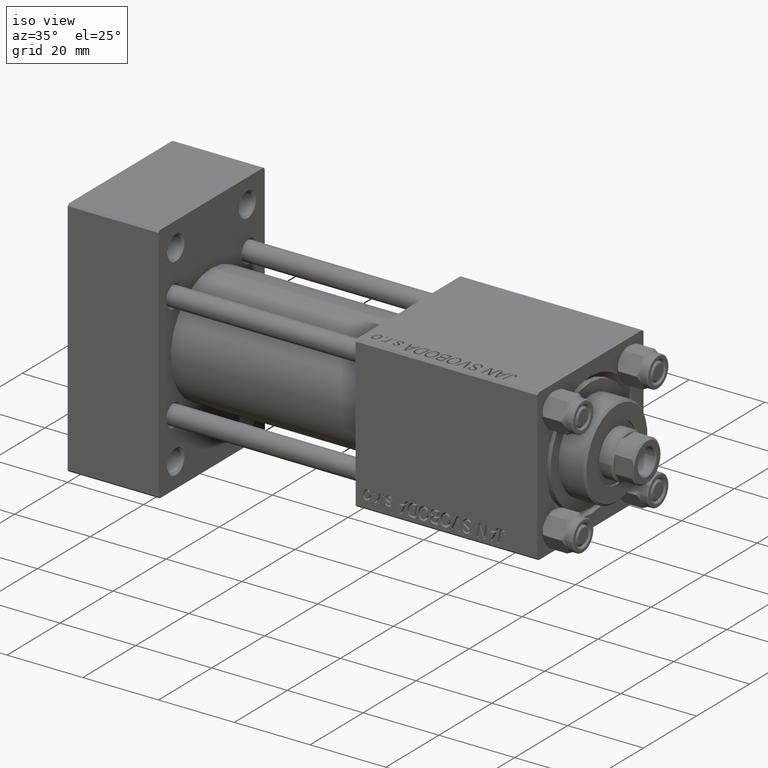
[diagram: clean part render]
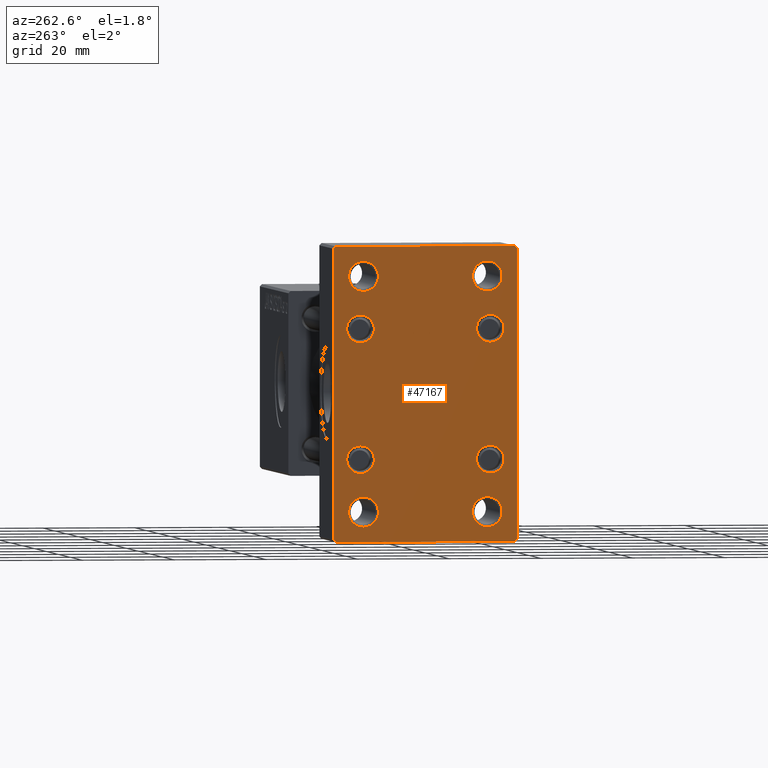
[diagram: tour spotlight — one face highlighted and labeled with its STEP entity id]
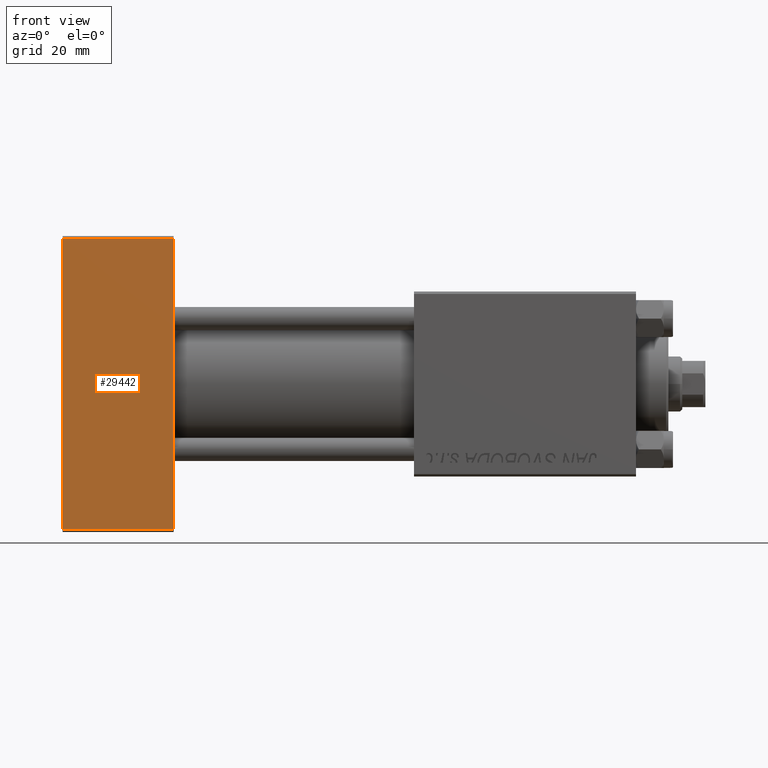
[diagram: tour spotlight — one face highlighted and labeled with its STEP entity id]
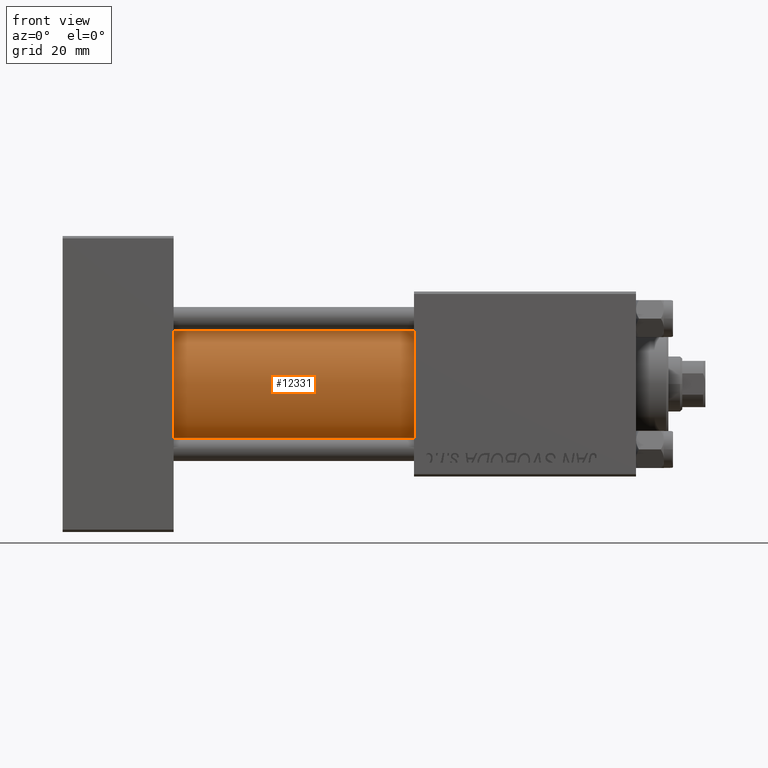
[diagram: tour spotlight — one face highlighted and labeled with its STEP entity id]
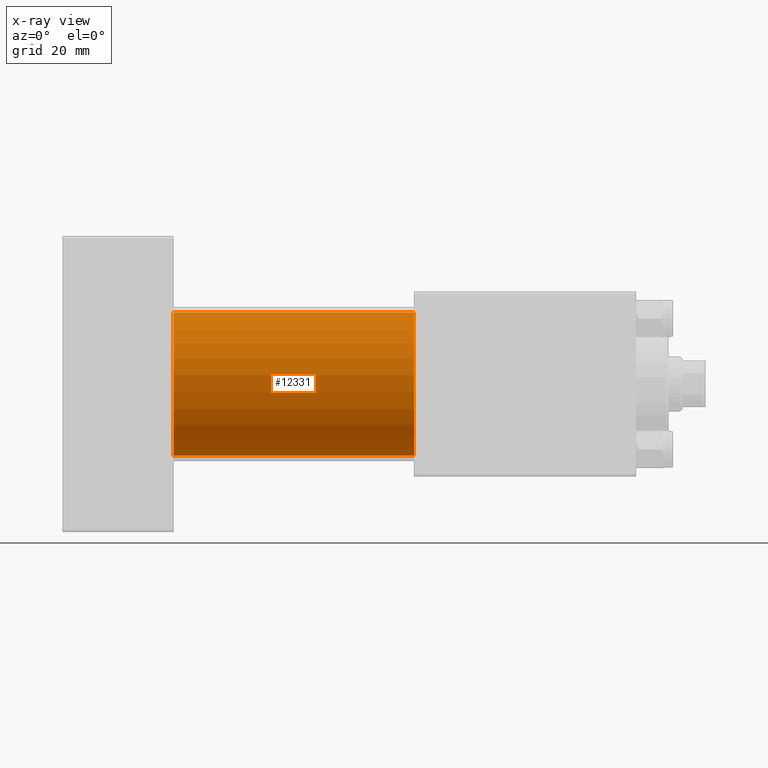
[diagram: x-ray of the same camera — body ghosted, this tour face saturated]
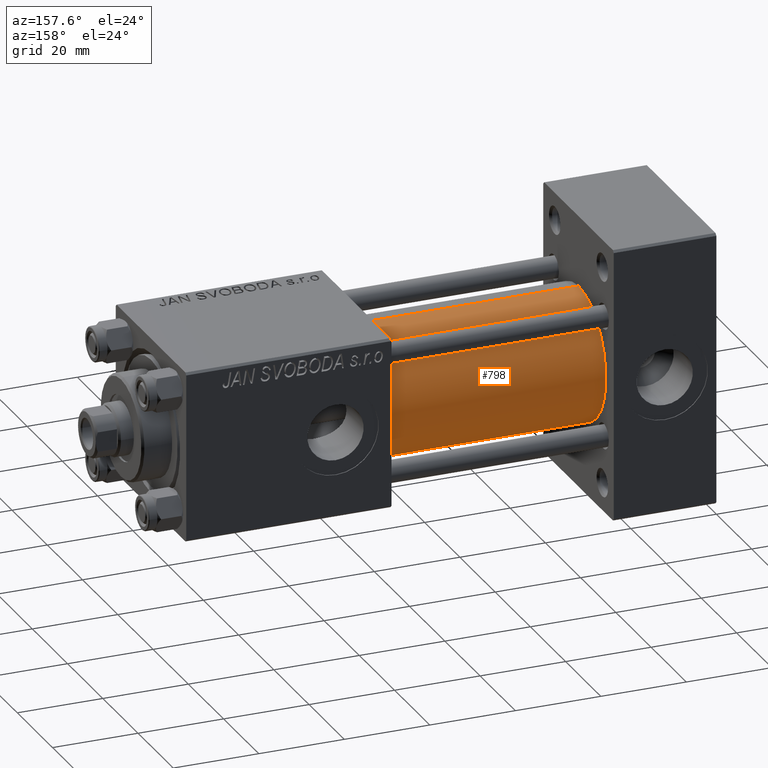
[diagram: tour spotlight — one face highlighted and labeled with its STEP entity id]
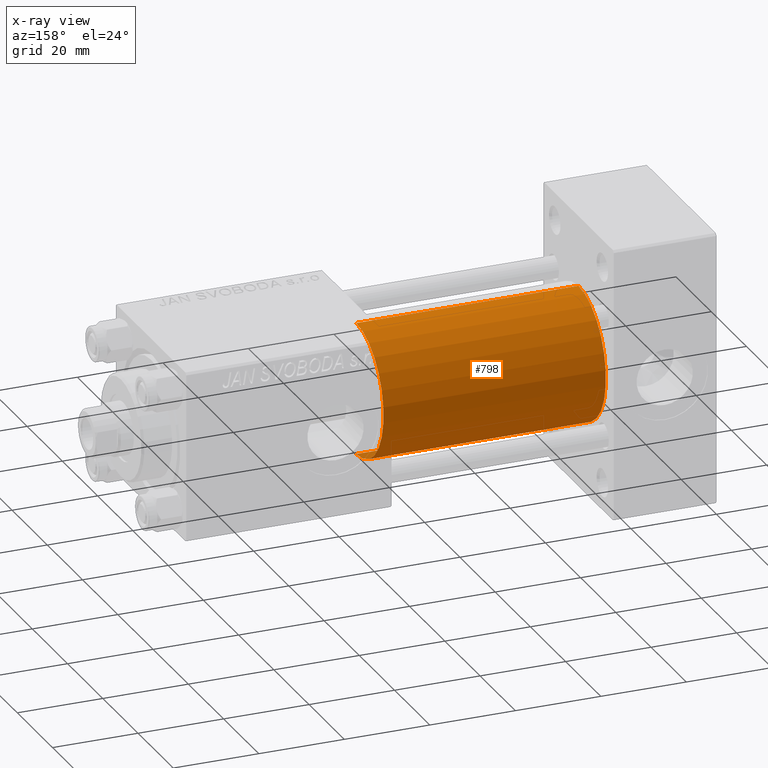
[diagram: x-ray of the same camera — body ghosted, this tour face saturated]
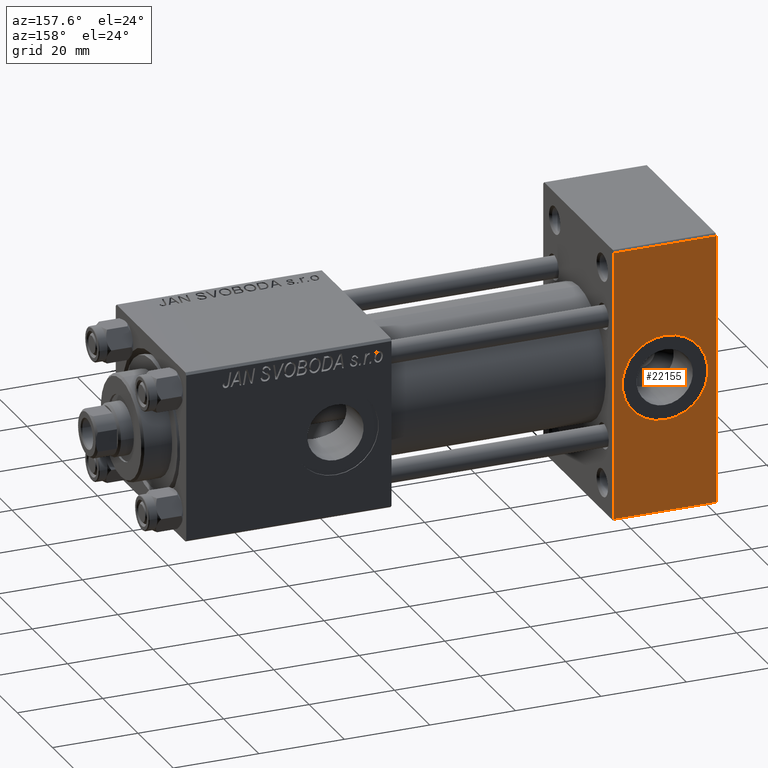
[diagram: tour spotlight — one face highlighted and labeled with its STEP entity id]
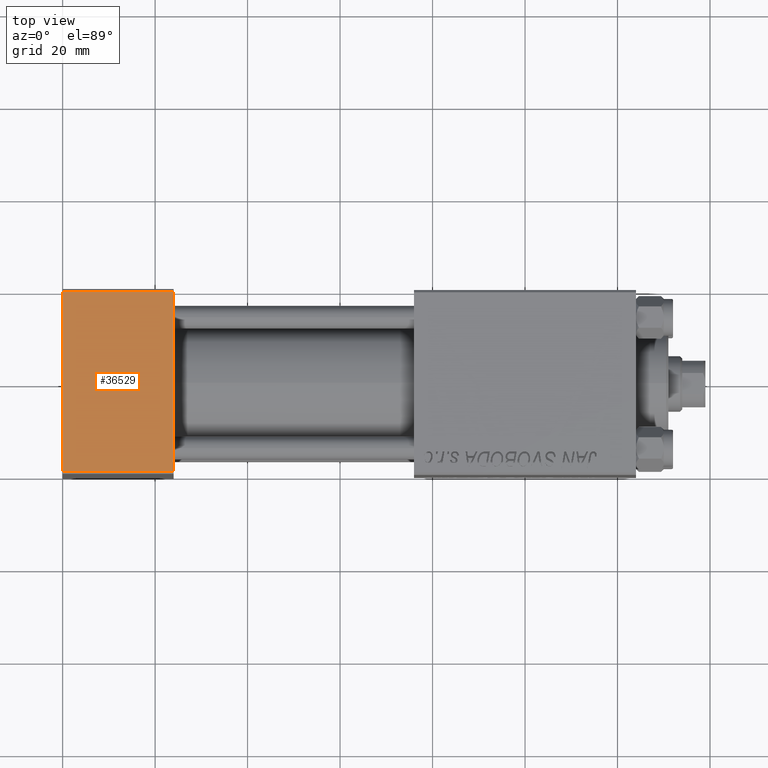
[diagram: tour spotlight — one face highlighted and labeled with its STEP entity id]
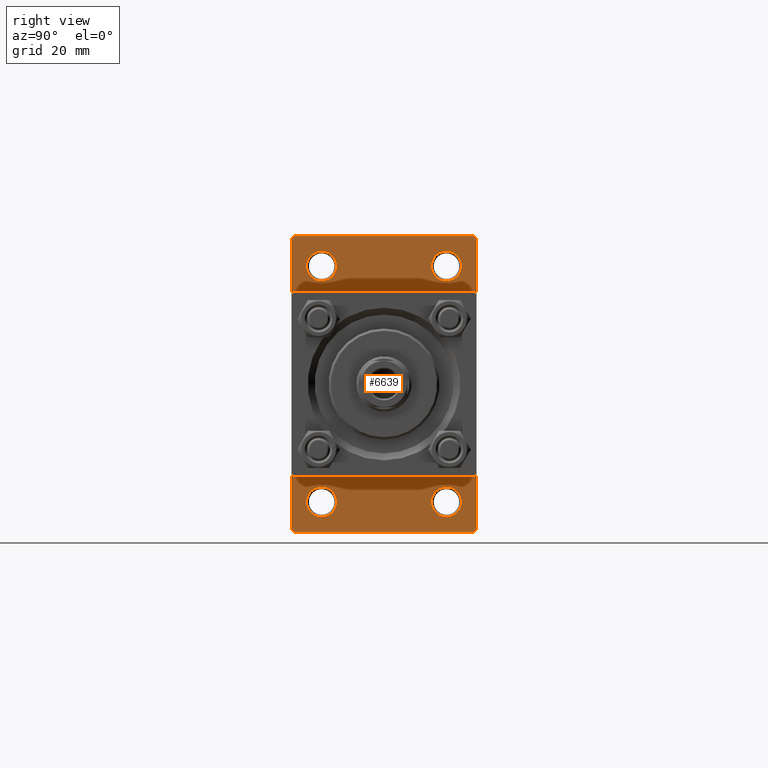
[diagram: tour spotlight — one face highlighted and labeled with its STEP entity id]
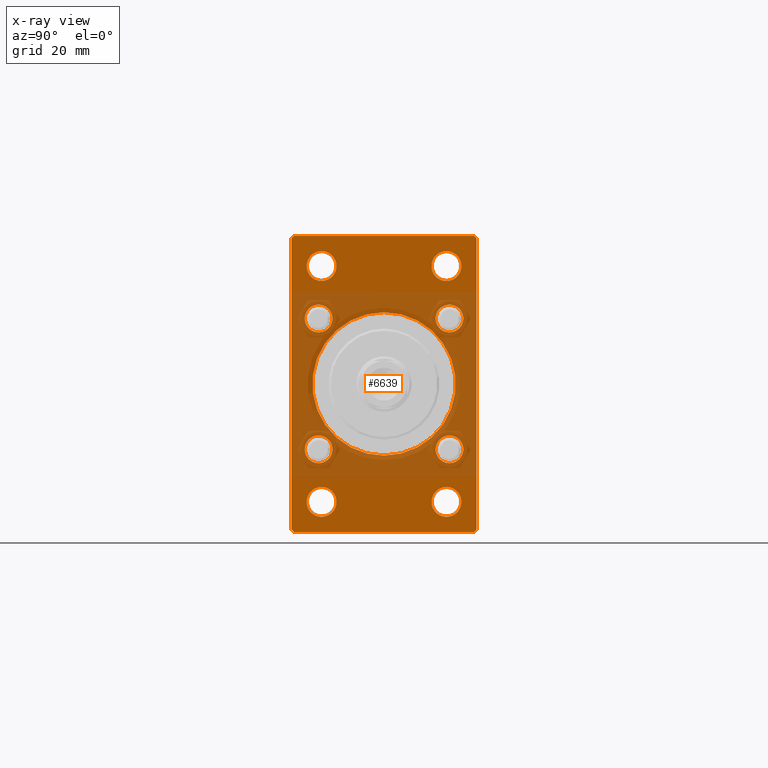
[diagram: x-ray of the same camera — body ghosted, this tour face saturated]
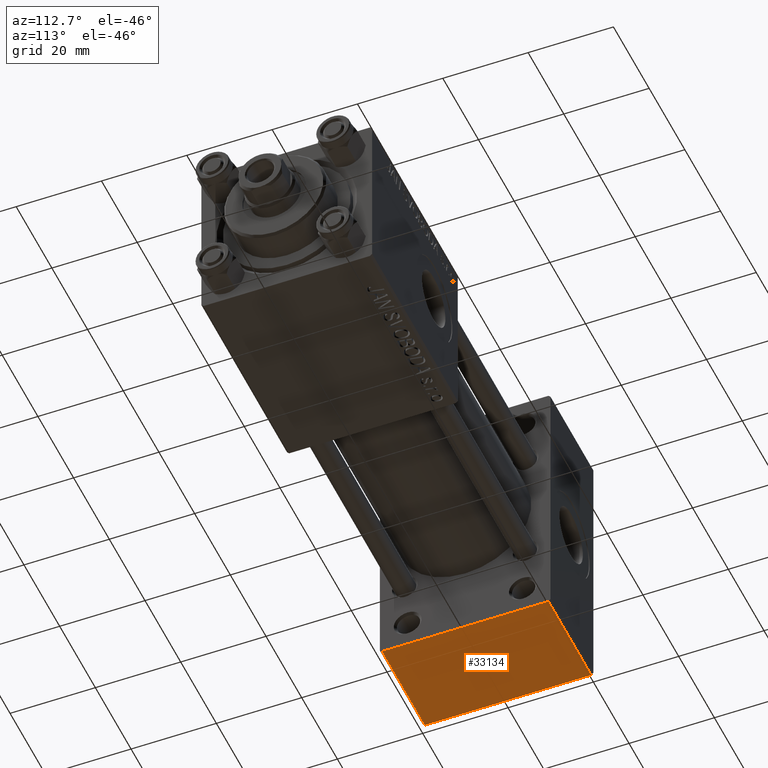
[diagram: tour spotlight — one face highlighted and labeled with its STEP entity id]
A machine part: a face-by-face anatomy tour. The part has 1136 B-rep faces; the first image is the clean iso view, then the 8 largest visible faces are spotlighted one at a time (largest first), each with its STEP entity span.

Face 1 — auxiliary view, entity #47167. In plain terms, the highlighted planar face has unit normal (-1, 0, 0).
Definition (entity closure, byte-faithful):
#106 = LINE ( 'NONE', #30668, #29408 ) ;
#241 = CIRCLE ( 'NONE', #30056, 3.000000000000004441 ) ;
#385 = DIRECTION ( 'NONE',  ( 0.000000000000000000, 0.000000000000000000, 1.000000000000000000 ) ) ;
#424 = DIRECTION ( 'NONE',  ( 1.000000000000000000, 0.000000000000000000, 0.000000000000000000 ) ) ;
#664 = VERTEX_POINT ( 'NONE', #42837 ) ;
#756 = VERTEX_POINT ( 'NONE', #2648 ) ;
#774 = DIRECTION ( 'NONE',  ( 0.000000000000000000, 0.000000000000000000, 1.000000000000000000 ) ) ;
#824 = CARTESIAN_POINT ( 'NONE',  ( 0.000000000000000000, 13.50000000000000178, 28.74999999999998579 ) ) ;
#1618 = AXIS2_PLACEMENT_3D ( 'NONE', #4622, #7905, #11452 ) ;
#1660 = VERTEX_POINT ( 'NONE', #27132 ) ;
#1674 = CIRCLE ( 'NONE', #13762, 3.249999999999988898 ) ;
#1682 = AXIS2_PLACEMENT_3D ( 'NONE', #11939, #42250, #34438 ) ;
#1815 = CARTESIAN_POINT ( 'NONE',  ( 0.000000000000000000, 14.14999999999999858, 17.15000000000000568 ) ) ;
#1911 = CARTESIAN_POINT ( 'NONE',  ( 0.000000000000000000, 19.49999999999999645, -31.99999999999999289 ) ) ;
#2214 = FACE_BOUND ( 'NONE', #23386, .T. ) ;
#2337 = ORIENTED_EDGE ( 'NONE', *, *, #8217, .T. ) ;
#2623 = DIRECTION ( 'NONE',  ( 0.000000000000000000, 0.000000000000000000, 1.000000000000000000 ) ) ;
#2648 = CARTESIAN_POINT ( 'NONE',  ( 0.000000000000000000, -19.49999999999999645, -31.99999999999999289 ) ) ;
#2672 = DIRECTION ( 'NONE',  ( 0.000000000000000000, -1.000000000000000000, 0.000000000000000000 ) ) ;
#2679 = DIRECTION ( 'NONE',  ( 0.000000000000000000, 0.000000000000000000, 1.000000000000000000 ) ) ;
#2748 = ORIENTED_EDGE ( 'NONE', *, *, #45527, .T. ) ;
#3180 = VECTOR ( 'NONE', #47639, 1000.000000000000000 ) ;
#3364 = DIRECTION ( 'NONE',  ( 1.000000000000000000, 0.000000000000000000, 0.000000000000000000 ) ) ;
#3843 = VECTOR ( 'NONE', #2672, 1000.000000000000000 ) ;
#4529 = AXIS2_PLACEMENT_3D ( 'NONE', #43788, #424, #12738 ) ;
#4622 = CARTESIAN_POINT ( 'NONE',  ( 0.000000000000000000, -14.14999999999999503, -14.15000000000000391 ) ) ;
#5459 = CARTESIAN_POINT ( 'NONE',  ( -0.000000000000000000, -25.75000000000014211, 25.74999999999978684 ) ) ;
#5470 = CARTESIAN_POINT ( 'NONE',  ( 0.000000000000000000, 14.14999999999999858, -11.14999999999999680 ) ) ;
#6464 = DIRECTION ( 'NONE',  ( 1.000000000000000000, 0.000000000000000000, 0.000000000000000000 ) ) ;
#6749 = FACE_BOUND ( 'NONE', #39950, .T. ) ;
#7155 = DIRECTION ( 'NONE',  ( 1.000000000000000000, 0.000000000000000000, 0.000000000000000000 ) ) ;
#7353 = CARTESIAN_POINT ( 'NONE',  ( 0.000000000000000000, -14.14999999999999503, -11.15000000000000036 ) ) ;
#7488 = EDGE_CURVE ( 'NONE', #36820, #10722, #39414, .T. ) ;
#7865 = ORIENTED_EDGE ( 'NONE', *, *, #16251, .T. ) ;
#7905 = DIRECTION ( 'NONE',  ( 1.000000000000000000, 0.000000000000000000, 0.000000000000000000 ) ) ;
#7946 = EDGE_LOOP ( 'NONE', ( #33869, #39368 ) ) ;
#8053 = AXIS2_PLACEMENT_3D ( 'NONE', #25933, #27179, #11788 ) ;
#8200 = ORIENTED_EDGE ( 'NONE', *, *, #17048, .T. ) ;
#8217 = EDGE_CURVE ( 'NONE', #20964, #13801, #47892, .T. ) ;
#8537 = ORIENTED_EDGE ( 'NONE', *, *, #25050, .T. ) ;
#8933 = CARTESIAN_POINT ( 'NONE',  ( 0.000000000000000000, -14.14999999999999503, -17.15000000000000924 ) ) ;
#9189 = CARTESIAN_POINT ( 'NONE',  ( 0.000000000000000000, 19.99999999999999645, -31.99999999999999289 ) ) ;
#10188 = CARTESIAN_POINT ( 'NONE',  ( 0.000000000000000000, 14.14999999999999858, -14.15000000000000036 ) ) ;
#10213 = DIRECTION ( 'NONE',  ( 1.000000000000000000, 0.000000000000000000, 0.000000000000000000 ) ) ;
#10323 = VERTEX_POINT ( 'NONE', #33289 ) ;
#10432 = CARTESIAN_POINT ( 'NONE',  ( 0.000000000000000000, 14.14999999999999858, -17.15000000000000568 ) ) ;
#10444 = EDGE_CURVE ( 'NONE', #10323, #36820, #46617, .T. ) ;
#10501 = ORIENTED_EDGE ( 'NONE', *, *, #10444, .T. ) ;
#10536 = FACE_OUTER_BOUND ( 'NONE', #27383, .T. ) ;
#10722 = VERTEX_POINT ( 'NONE', #1911 ) ;
#10963 = CARTESIAN_POINT ( 'NONE',  ( 0.000000000000000000, -14.14999999999999503, -14.15000000000000391 ) ) ;
#11452 = DIRECTION ( 'NONE',  ( 0.000000000000000000, 0.000000000000000000, 1.000000000000000000 ) ) ;
#11788 = DIRECTION ( 'NONE',  ( -0.000000000000000000, 0.000000000000000000, 1.000000000000000000 ) ) ;
#11939 = CARTESIAN_POINT ( 'NONE',  ( 0.000000000000000000, -13.49999999999999822, -25.50000000000000000 ) ) ;
#12294 = DIRECTION ( 'NONE',  ( 0.000000000000000000, 0.000000000000000000, 1.000000000000000000 ) ) ;
#12315 = CIRCLE ( 'NONE', #45349, 3.000000000000000888 ) ;
#12392 = CARTESIAN_POINT ( 'NONE',  ( 0.000000000000000000, 13.50000000000000178, -25.50000000000000000 ) ) ;
#12620 = CARTESIAN_POINT ( 'NONE',  ( 0.000000000000000000, -20.00000000000000355, -31.49999999999997158 ) ) ;
#12738 = DIRECTION ( 'NONE',  ( 0.000000000000000000, 0.000000000000000000, 1.000000000000000000 ) ) ;
#12977 = DIRECTION ( 'NONE',  ( 1.000000000000000000, 0.000000000000000000, 0.000000000000000000 ) ) ;
#13128 = EDGE_CURVE ( 'NONE', #35327, #30841, #39555, .T. ) ;
#13304 = LINE ( 'NONE', #5459, #3180 ) ;
#13431 = LINE ( 'NONE', #28835, #43852 ) ;
#13762 = AXIS2_PLACEMENT_3D ( 'NONE', #14737, #3364, #30904 ) ;
#13801 = VERTEX_POINT ( 'NONE', #15786 ) ;
#13852 = VERTEX_POINT ( 'NONE', #16030 ) ;
#13959 = CARTESIAN_POINT ( 'NONE',  ( 0.000000000000000000, -13.49999999999999822, -25.50000000000000000 ) ) ;
#14332 = FACE_BOUND ( 'NONE', #33757, .T. ) ;
#14391 = DIRECTION ( 'NONE',  ( 0.000000000000000000, 0.000000000000000000, 1.000000000000000000 ) ) ;
#14737 = CARTESIAN_POINT ( 'NONE',  ( 0.000000000000000000, -13.49999999999999822, 25.50000000000000000 ) ) ;
#15510 = AXIS2_PLACEMENT_3D ( 'NONE', #39007, #12977, #31414 ) ;
#15786 = CARTESIAN_POINT ( 'NONE',  ( 0.000000000000000000, 13.50000000000000178, -22.25000000000001066 ) ) ;
#15838 = CARTESIAN_POINT ( 'NONE',  ( 0.000000000000000000, 19.99999999999999645, 32.00000000000000000 ) ) ;
#15921 = ORIENTED_EDGE ( 'NONE', *, *, #13128, .T. ) ;
#16030 = CARTESIAN_POINT ( 'NONE',  ( 0.000000000000000000, -13.49999999999999822, 28.74999999999998579 ) ) ;
#16251 = EDGE_CURVE ( 'NONE', #24610, #1660, #23451, .T. ) ;
#16534 = ORIENTED_EDGE ( 'NONE', *, *, #41124, .F. ) ;
#17048 = EDGE_CURVE ( 'NONE', #28967, #36082, #33992, .T. ) ;
#17081 = AXIS2_PLACEMENT_3D ( 'NONE', #25367, #40778, #22075 ) ;
#17363 = CARTESIAN_POINT ( 'NONE',  ( 0.000000000000000000, 14.14999999999999858, -14.15000000000000036 ) ) ;
#18002 = EDGE_CURVE ( 'NONE', #36082, #28967, #26761, .T. ) ;
#18203 = CIRCLE ( 'NONE', #23040, 3.000000000000004441 ) ;
#18228 = EDGE_LOOP ( 'NONE', ( #8200, #34384 ) ) ;
#18323 = CIRCLE ( 'NONE', #35284, 3.249999999999988898 ) ;
#18690 = EDGE_CURVE ( 'NONE', #40378, #33639, #42886, .T. ) ;
#18886 = EDGE_CURVE ( 'NONE', #10722, #756, #43784, .T. ) ;
#19216 = CARTESIAN_POINT ( 'NONE',  ( 0.000000000000000000, 19.49999999999999645, 32.00000000000000000 ) ) ;
#19226 = ORIENTED_EDGE ( 'NONE', *, *, #38055, .T. ) ;
#19258 = EDGE_CURVE ( 'NONE', #32024, #13852, #21978, .T. ) ;
#20225 = VERTEX_POINT ( 'NONE', #5470 ) ;
#20402 = CARTESIAN_POINT ( 'NONE',  ( 0.000000000000000000, -13.49999999999999822, -28.74999999999998579 ) ) ;
#20663 = ORIENTED_EDGE ( 'NONE', *, *, #29387, .T. ) ;
#20964 = VERTEX_POINT ( 'NONE', #47468 ) ;
#21169 = FACE_BOUND ( 'NONE', #45318, .T. ) ;
#21468 = CIRCLE ( 'NONE', #4529, 3.249999999999988898 ) ;
#21657 = VERTEX_POINT ( 'NONE', #19216 ) ;
#21660 = PLANE ( 'NONE',  #8053 ) ;
#21978 = CIRCLE ( 'NONE', #41335, 3.249999999999988898 ) ;
#22075 = DIRECTION ( 'NONE',  ( 0.000000000000000000, 0.000000000000000000, 1.000000000000000000 ) ) ;
#22286 = VECTOR ( 'NONE', #36826, 1000.000000000000114 ) ;
#23040 = AXIS2_PLACEMENT_3D ( 'NONE', #10963, #10213, #29188 ) ;
#23386 = EDGE_LOOP ( 'NONE', ( #19226, #2337 ) ) ;
#23451 = CIRCLE ( 'NONE', #1682, 3.249999999999988898 ) ;
#23500 = CARTESIAN_POINT ( 'NONE',  ( 0.000000000000000000, 14.14999999999999858, 11.14999999999999858 ) ) ;
#23502 = EDGE_CURVE ( 'NONE', #33639, #40378, #12315, .T. ) ;
#23722 = EDGE_CURVE ( 'NONE', #26158, #20225, #241, .T. ) ;
#23809 = CIRCLE ( 'NONE', #28686, 3.000000000000004441 ) ;
#24504 = AXIS2_PLACEMENT_3D ( 'NONE', #12392, #7155, #774 ) ;
#24588 = DIRECTION ( 'NONE',  ( 0.000000000000000000, -1.000000000000000000, 0.000000000000000000 ) ) ;
#24610 = VERTEX_POINT ( 'NONE', #20402 ) ;
#25050 = EDGE_CURVE ( 'NONE', #756, #46286, #13431, .T. ) ;
#25367 = CARTESIAN_POINT ( 'NONE',  ( 0.000000000000000000, -14.14999999999999503, 14.15000000000000391 ) ) ;
#25898 = CARTESIAN_POINT ( 'NONE',  ( 0.000000000000000000, 14.14999999999999858, 14.15000000000000036 ) ) ;
#25933 = CARTESIAN_POINT ( 'NONE',  ( 0.000000000000000000, 0.000000000000000000, 0.000000000000000000 ) ) ;
#26158 = VERTEX_POINT ( 'NONE', #10432 ) ;
#26258 = ORIENTED_EDGE ( 'NONE', *, *, #7488, .T. ) ;
#26666 = CARTESIAN_POINT ( 'NONE',  ( 0.000000000000000000, -20.00000000000000355, 31.50000000000000711 ) ) ;
#26761 = CIRCLE ( 'NONE', #15510, 3.000000000000000888 ) ;
#27132 = CARTESIAN_POINT ( 'NONE',  ( 0.000000000000000000, -13.49999999999999822, -22.25000000000001066 ) ) ;
#27178 = DIRECTION ( 'NONE',  ( 0.000000000000000000, 0.000000000000000000, -1.000000000000000000 ) ) ;
#27179 = DIRECTION ( 'NONE',  ( -1.000000000000000000, 0.000000000000000000, -0.000000000000000000 ) ) ;
#27383 = EDGE_LOOP ( 'NONE', ( #10501, #26258, #30463, #8537, #38299, #2748, #16534, #45716 ) ) ;
#27704 = VECTOR ( 'NONE', #42439, 1000.000000000000000 ) ;
#27784 = CARTESIAN_POINT ( 'NONE',  ( -0.000000000000000000, 25.74999999999986144, -25.75000000000021672 ) ) ;
#27808 = AXIS2_PLACEMENT_3D ( 'NONE', #13959, #48782, #45479 ) ;
#27895 = DIRECTION ( 'NONE',  ( 1.000000000000000000, 0.000000000000000000, 0.000000000000000000 ) ) ;
#28264 = EDGE_CURVE ( 'NONE', #31002, #46286, #106, .T. ) ;
#28513 = EDGE_CURVE ( 'NONE', #1660, #24610, #33476, .T. ) ;
#28560 = CARTESIAN_POINT ( 'NONE',  ( 0.000000000000000000, 19.99999999999999645, -31.50000000000000000 ) ) ;
#28686 = AXIS2_PLACEMENT_3D ( 'NONE', #17363, #42528, #42273 ) ;
#28835 = CARTESIAN_POINT ( 'NONE',  ( 0.000000000000000000, -25.75000000000026645, -25.74999999999955591 ) ) ;
#28967 = VERTEX_POINT ( 'NONE', #37130 ) ;
#29188 = DIRECTION ( 'NONE',  ( 0.000000000000000000, 0.000000000000000000, 1.000000000000000000 ) ) ;
#29387 = EDGE_CURVE ( 'NONE', #20225, #26158, #23809, .T. ) ;
#29408 = VECTOR ( 'NONE', #49581, 1000.000000000000000 ) ;
#29441 = ORIENTED_EDGE ( 'NONE', *, *, #38887, .T. ) ;
#29464 = ORIENTED_EDGE ( 'NONE', *, *, #49455, .T. ) ;
#29482 = CARTESIAN_POINT ( 'NONE',  ( -0.000000000000000000, 25.75000000000000000, 25.75000000000000000 ) ) ;
#29531 = ORIENTED_EDGE ( 'NONE', *, *, #23722, .T. ) ;
#29737 = FACE_BOUND ( 'NONE', #34193, .T. ) ;
#30056 = AXIS2_PLACEMENT_3D ( 'NONE', #10188, #37235, #2623 ) ;
#30463 = ORIENTED_EDGE ( 'NONE', *, *, #18886, .T. ) ;
#30668 = CARTESIAN_POINT ( 'NONE',  ( 0.000000000000000000, -20.00000000000000355, 32.00000000000000000 ) ) ;
#30750 = CARTESIAN_POINT ( 'NONE',  ( 0.000000000000000000, 13.50000000000000178, 25.50000000000000000 ) ) ;
#30841 = VERTEX_POINT ( 'NONE', #7353 ) ;
#30904 = DIRECTION ( 'NONE',  ( 0.000000000000000000, 0.000000000000000000, 1.000000000000000000 ) ) ;
#31002 = VERTEX_POINT ( 'NONE', #26666 ) ;
#31241 = DIRECTION ( 'NONE',  ( 1.000000000000000000, 0.000000000000000000, 0.000000000000000000 ) ) ;
#31414 = DIRECTION ( 'NONE',  ( 0.000000000000000000, 0.000000000000000000, 1.000000000000000000 ) ) ;
#32024 = VERTEX_POINT ( 'NONE', #46673 ) ;
#32138 = EDGE_CURVE ( 'NONE', #21657, #10323, #48171, .T. ) ;
#32436 = EDGE_LOOP ( 'NONE', ( #38559, #29441 ) ) ;
#32980 = VECTOR ( 'NONE', #27178, 1000.000000000000000 ) ;
#33278 = CARTESIAN_POINT ( 'NONE',  ( 0.000000000000000000, 13.50000000000000178, 22.25000000000001066 ) ) ;
#33285 = CARTESIAN_POINT ( 'NONE',  ( 0.000000000000000000, 14.14999999999999858, 14.15000000000000036 ) ) ;
#33289 = CARTESIAN_POINT ( 'NONE',  ( 0.000000000000000000, 19.99999999999999645, 31.50000000000000000 ) ) ;
#33476 = CIRCLE ( 'NONE', #27808, 3.249999999999988898 ) ;
#33596 = CARTESIAN_POINT ( 'NONE',  ( 0.000000000000000000, -13.49999999999999822, 25.50000000000000000 ) ) ;
#33639 = VERTEX_POINT ( 'NONE', #23500 ) ;
#33757 = EDGE_LOOP ( 'NONE', ( #37544, #7865 ) ) ;
#33869 = ORIENTED_EDGE ( 'NONE', *, *, #18690, .T. ) ;
#33992 = CIRCLE ( 'NONE', #17081, 3.000000000000000888 ) ;
#34193 = EDGE_LOOP ( 'NONE', ( #42641, #15921 ) ) ;
#34384 = ORIENTED_EDGE ( 'NONE', *, *, #18002, .T. ) ;
#34438 = DIRECTION ( 'NONE',  ( 0.000000000000000000, 0.000000000000000000, 1.000000000000000000 ) ) ;
#34748 = VERTEX_POINT ( 'NONE', #33278 ) ;
#34992 = CARTESIAN_POINT ( 'NONE',  ( 0.000000000000000000, 13.50000000000000178, 25.50000000000000000 ) ) ;
#35015 = EDGE_CURVE ( 'NONE', #30841, #35327, #18203, .T. ) ;
#35284 = AXIS2_PLACEMENT_3D ( 'NONE', #34992, #27895, #385 ) ;
#35327 = VERTEX_POINT ( 'NONE', #8933 ) ;
#36082 = VERTEX_POINT ( 'NONE', #47615 ) ;
#36820 = VERTEX_POINT ( 'NONE', #28560 ) ;
#36826 = DIRECTION ( 'NONE',  ( 0.000000000000000000, 0.7071067811865474617, -0.7071067811865474617 ) ) ;
#37072 = DIRECTION ( 'NONE',  ( 0.000000000000000000, 0.000000000000000000, 1.000000000000000000 ) ) ;
#37077 = FACE_BOUND ( 'NONE', #18228, .T. ) ;
#37130 = CARTESIAN_POINT ( 'NONE',  ( 0.000000000000000000, -14.14999999999999503, 17.15000000000000924 ) ) ;
#37235 = DIRECTION ( 'NONE',  ( 1.000000000000000000, 0.000000000000000000, 0.000000000000000000 ) ) ;
#37289 = LINE ( 'NONE', #49618, #3843 ) ;
#37314 = VECTOR ( 'NONE', #24588, 1000.000000000000000 ) ;
#37327 = DIRECTION ( 'NONE',  ( 1.000000000000000000, 0.000000000000000000, 0.000000000000000000 ) ) ;
#37544 = ORIENTED_EDGE ( 'NONE', *, *, #28513, .T. ) ;
#38055 = EDGE_CURVE ( 'NONE', #13801, #20964, #21468, .T. ) ;
#38299 = ORIENTED_EDGE ( 'NONE', *, *, #28264, .F. ) ;
#38559 = ORIENTED_EDGE ( 'NONE', *, *, #41300, .T. ) ;
#38887 = EDGE_CURVE ( 'NONE', #34748, #49527, #40055, .T. ) ;
#39007 = CARTESIAN_POINT ( 'NONE',  ( 0.000000000000000000, -14.14999999999999503, 14.15000000000000391 ) ) ;
#39268 = AXIS2_PLACEMENT_3D ( 'NONE', #30750, #31241, #12294 ) ;
#39368 = ORIENTED_EDGE ( 'NONE', *, *, #23502, .T. ) ;
#39414 = LINE ( 'NONE', #27784, #27704 ) ;
#39555 = CIRCLE ( 'NONE', #1618, 3.000000000000004441 ) ;
#39950 = EDGE_LOOP ( 'NONE', ( #29464, #49102 ) ) ;
#40055 = CIRCLE ( 'NONE', #39268, 3.249999999999988898 ) ;
#40378 = VERTEX_POINT ( 'NONE', #1815 ) ;
#40778 = DIRECTION ( 'NONE',  ( 1.000000000000000000, 0.000000000000000000, 0.000000000000000000 ) ) ;
#40859 = FACE_BOUND ( 'NONE', #7946, .T. ) ;
#41124 = EDGE_CURVE ( 'NONE', #21657, #664, #37289, .T. ) ;
#41296 = AXIS2_PLACEMENT_3D ( 'NONE', #33285, #37327, #37072 ) ;
#41300 = EDGE_CURVE ( 'NONE', #49527, #34748, #18323, .T. ) ;
#41335 = AXIS2_PLACEMENT_3D ( 'NONE', #33596, #48980, #14391 ) ;
#42250 = DIRECTION ( 'NONE',  ( 1.000000000000000000, 0.000000000000000000, 0.000000000000000000 ) ) ;
#42273 = DIRECTION ( 'NONE',  ( 0.000000000000000000, 0.000000000000000000, 1.000000000000000000 ) ) ;
#42439 = DIRECTION ( 'NONE',  ( -0.000000000000000000, -0.7071067811865524577, -0.7071067811865426878 ) ) ;
#42528 = DIRECTION ( 'NONE',  ( 1.000000000000000000, 0.000000000000000000, 0.000000000000000000 ) ) ;
#42641 = ORIENTED_EDGE ( 'NONE', *, *, #35015, .T. ) ;
#42837 = CARTESIAN_POINT ( 'NONE',  ( 0.000000000000000000, -19.50000000000001776, 32.00000000000000000 ) ) ;
#42886 = CIRCLE ( 'NONE', #41296, 3.000000000000000888 ) ;
#43784 = LINE ( 'NONE', #9189, #37314 ) ;
#43788 = CARTESIAN_POINT ( 'NONE',  ( 0.000000000000000000, 13.50000000000000178, -25.50000000000000000 ) ) ;
#43852 = VECTOR ( 'NONE', #48995, 1000.000000000000000 ) ;
#45318 = EDGE_LOOP ( 'NONE', ( #20663, #29531 ) ) ;
#45349 = AXIS2_PLACEMENT_3D ( 'NONE', #25898, #6464, #2679 ) ;
#45479 = DIRECTION ( 'NONE',  ( 0.000000000000000000, 0.000000000000000000, 1.000000000000000000 ) ) ;
#45527 = EDGE_CURVE ( 'NONE', #31002, #664, #13304, .T. ) ;
#45716 = ORIENTED_EDGE ( 'NONE', *, *, #32138, .T. ) ;
#46286 = VERTEX_POINT ( 'NONE', #12620 ) ;
#46617 = LINE ( 'NONE', #15838, #32980 ) ;
#46673 = CARTESIAN_POINT ( 'NONE',  ( 0.000000000000000000, -13.49999999999999822, 22.25000000000001066 ) ) ;
#47167 = ADVANCED_FACE ( 'NONE', ( #48917, #6749, #14332, #2214, #37077, #29737, #21169, #40859, #10536 ), #21660, .T. ) ;
#47468 = CARTESIAN_POINT ( 'NONE',  ( 0.000000000000000000, 13.50000000000000178, -28.74999999999998579 ) ) ;
#47615 = CARTESIAN_POINT ( 'NONE',  ( 0.000000000000000000, -14.14999999999999503, 11.15000000000000213 ) ) ;
#47639 = DIRECTION ( 'NONE',  ( -0.000000000000000000, 0.7071067811865426878, 0.7071067811865524577 ) ) ;
#47892 = CIRCLE ( 'NONE', #24504, 3.249999999999988898 ) ;
#48171 = LINE ( 'NONE', #29482, #22286 ) ;
#48782 = DIRECTION ( 'NONE',  ( 1.000000000000000000, 0.000000000000000000, 0.000000000000000000 ) ) ;
#48917 = FACE_BOUND ( 'NONE', #32436, .T. ) ;
#48980 = DIRECTION ( 'NONE',  ( 1.000000000000000000, 0.000000000000000000, 0.000000000000000000 ) ) ;
#48995 = DIRECTION ( 'NONE',  ( 0.000000000000000000, -0.7071067811865378028, 0.7071067811865573427 ) ) ;
#49102 = ORIENTED_EDGE ( 'NONE', *, *, #19258, .T. ) ;
#49455 = EDGE_CURVE ( 'NONE', #13852, #32024, #1674, .T. ) ;
#49527 = VERTEX_POINT ( 'NONE', #824 ) ;
#49581 = DIRECTION ( 'NONE',  ( 0.000000000000000000, 0.000000000000000000, -1.000000000000000000 ) ) ;
#49618 = CARTESIAN_POINT ( 'NONE',  ( 0.000000000000000000, 19.99999999999999645, 32.00000000000000000 ) ) ;

Face 2 — front view, entity #29442. In plain terms, the highlighted planar face has unit normal (0, 1, 0).
Definition (entity closure, byte-faithful):
#106 = LINE ( 'NONE', #30668, #29408 ) ;
#7900 = CARTESIAN_POINT ( 'NONE',  ( 24.00000000000000000, -20.00000000000000355, -31.49999999999997158 ) ) ;
#7999 = LINE ( 'NONE', #9195, #11079 ) ;
#9195 = CARTESIAN_POINT ( 'NONE',  ( 24.00000000000000000, -20.00000000000000355, 32.00000000000000000 ) ) ;
#10271 = PLANE ( 'NONE',  #48035 ) ;
#11079 = VECTOR ( 'NONE', #47325, 1000.000000000000000 ) ;
#12620 = CARTESIAN_POINT ( 'NONE',  ( 0.000000000000000000, -20.00000000000000355, -31.49999999999997158 ) ) ;
#15530 = CARTESIAN_POINT ( 'NONE',  ( 24.00000000000000000, -20.00000000000000355, 32.00000000000000000 ) ) ;
#16306 = DIRECTION ( 'NONE',  ( 1.000000000000000000, 0.000000000000000000, 0.000000000000000000 ) ) ;
#19045 = FACE_OUTER_BOUND ( 'NONE', #21358, .T. ) ;
#20560 = ORIENTED_EDGE ( 'NONE', *, *, #25875, .T. ) ;
#21208 = DIRECTION ( 'NONE',  ( -1.000000000000000000, 0.000000000000000000, 0.000000000000000000 ) ) ;
#21358 = EDGE_LOOP ( 'NONE', ( #44973, #20560, #42289, #23357 ) ) ;
#23357 = ORIENTED_EDGE ( 'NONE', *, *, #33663, .T. ) ;
#24364 = CARTESIAN_POINT ( 'NONE',  ( 24.00000000000000000, -20.00000000000000355, -31.49999999999997158 ) ) ;
#25875 = EDGE_CURVE ( 'NONE', #46286, #26225, #42554, .T. ) ;
#26225 = VERTEX_POINT ( 'NONE', #7900 ) ;
#26610 = DIRECTION ( 'NONE',  ( -0.000000000000000000, 1.000000000000000000, 0.000000000000000000 ) ) ;
#26666 = CARTESIAN_POINT ( 'NONE',  ( 0.000000000000000000, -20.00000000000000355, 31.50000000000000711 ) ) ;
#28264 = EDGE_CURVE ( 'NONE', #31002, #46286, #106, .T. ) ;
#29408 = VECTOR ( 'NONE', #49581, 1000.000000000000000 ) ;
#29442 = ADVANCED_FACE ( 'NONE', ( #19045 ), #10271, .F. ) ;
#30668 = CARTESIAN_POINT ( 'NONE',  ( 0.000000000000000000, -20.00000000000000355, 32.00000000000000000 ) ) ;
#31002 = VERTEX_POINT ( 'NONE', #26666 ) ;
#31835 = CARTESIAN_POINT ( 'NONE',  ( 24.00000000000000000, -20.00000000000000355, 31.50000000000000711 ) ) ;
#32680 = CARTESIAN_POINT ( 'NONE',  ( 24.00000000000000000, -20.00000000000000355, 31.50000000000000711 ) ) ;
#33663 = EDGE_CURVE ( 'NONE', #37395, #31002, #35128, .T. ) ;
#34420 = VECTOR ( 'NONE', #21208, 1000.000000000000000 ) ;
#35128 = LINE ( 'NONE', #31835, #34420 ) ;
#35796 = VECTOR ( 'NONE', #16306, 1000.000000000000000 ) ;
#37395 = VERTEX_POINT ( 'NONE', #32680 ) ;
#38058 = EDGE_CURVE ( 'NONE', #37395, #26225, #7999, .T. ) ;
#42289 = ORIENTED_EDGE ( 'NONE', *, *, #38058, .F. ) ;
#42554 = LINE ( 'NONE', #24364, #35796 ) ;
#44973 = ORIENTED_EDGE ( 'NONE', *, *, #28264, .T. ) ;
#46286 = VERTEX_POINT ( 'NONE', #12620 ) ;
#47325 = DIRECTION ( 'NONE',  ( 0.000000000000000000, 0.000000000000000000, -1.000000000000000000 ) ) ;
#48035 = AXIS2_PLACEMENT_3D ( 'NONE', #15530, #26610, #49589 ) ;
#49581 = DIRECTION ( 'NONE',  ( 0.000000000000000000, 0.000000000000000000, -1.000000000000000000 ) ) ;
#49589 = DIRECTION ( 'NONE',  ( 0.000000000000000000, -0.000000000000000000, 1.000000000000000000 ) ) ;

Face 3 — front view, entity #12331. An x-ray twin of the same camera follows (body ghosted, this face saturated) — the face is partly hidden behind the body. In plain terms, the highlighted cylindrical surface (partial cylindrical patch) has radius 15.5 mm, axis along (-1, -0, -0).
Definition (entity closure, byte-faithful):
#6 = CARTESIAN_POINT ( 'NONE',  ( 76.00000000000000000, -2.602085213965210642E-15, 15.50000000000000000 ) ) ;
#257 = DIRECTION ( 'NONE',  ( -1.000000000000000000, -0.000000000000000000, -0.000000000000000000 ) ) ;
#3350 = DIRECTION ( 'NONE',  ( -1.000000000000000000, -0.000000000000000000, -0.000000000000000000 ) ) ;
#5108 = CARTESIAN_POINT ( 'NONE',  ( 76.00000000000000000, -2.602085213965210642E-15, 0.000000000000000000 ) ) ;
#5242 = VERTEX_POINT ( 'NONE', #36668 ) ;
#5983 = ORIENTED_EDGE ( 'NONE', *, *, #45470, .F. ) ;
#6224 = ORIENTED_EDGE ( 'NONE', *, *, #47735, .F. ) ;
#9475 = CARTESIAN_POINT ( 'NONE',  ( 24.00000000000000000, -2.602085213965210642E-15, 0.000000000000000000 ) ) ;
#9648 = AXIS2_PLACEMENT_3D ( 'NONE', #5108, #40213, #16484 ) ;
#11489 = EDGE_CURVE ( 'NONE', #17415, #48827, #38647, .T. ) ;
#12331 = ADVANCED_FACE ( 'NONE', ( #24798 ), #16234, .T. ) ;
#16234 = CYLINDRICAL_SURFACE ( 'NONE', #9648, 15.50000000000000000 ) ;
#16484 = DIRECTION ( 'NONE',  ( 0.000000000000000000, 0.000000000000000000, 1.000000000000000000 ) ) ;
#17415 = VERTEX_POINT ( 'NONE', #27039 ) ;
#17783 = EDGE_CURVE ( 'NONE', #48827, #5242, #25965, .T. ) ;
#18619 = CARTESIAN_POINT ( 'NONE',  ( 76.00000000000000000, -2.602085213965210642E-15, 0.000000000000000000 ) ) ;
#19043 = ORIENTED_EDGE ( 'NONE', *, *, #17783, .T. ) ;
#19055 = EDGE_LOOP ( 'NONE', ( #6224, #5983, #31178, #19043 ) ) ;
#23159 = DIRECTION ( 'NONE',  ( 0.000000000000000000, 0.000000000000000000, -1.000000000000000000 ) ) ;
#24289 = CARTESIAN_POINT ( 'NONE',  ( 76.00000000000000000, -7.038826752868134786E-16, -15.50000000000000000 ) ) ;
#24798 = FACE_OUTER_BOUND ( 'NONE', #19055, .T. ) ;
#24878 = DIRECTION ( 'NONE',  ( 0.000000000000000000, 0.000000000000000000, 1.000000000000000000 ) ) ;
#25965 = CIRCLE ( 'NONE', #39703, 15.50000000000000000 ) ;
#27039 = CARTESIAN_POINT ( 'NONE',  ( 76.00000000000000000, -2.602085213965210642E-15, 15.50000000000000000 ) ) ;
#29624 = CARTESIAN_POINT ( 'NONE',  ( 76.00000000000000000, -7.038826752868134786E-16, -15.50000000000000000 ) ) ;
#31178 = ORIENTED_EDGE ( 'NONE', *, *, #11489, .T. ) ;
#36668 = CARTESIAN_POINT ( 'NONE',  ( 24.00000000000000000, -7.038826752868134786E-16, -15.50000000000000000 ) ) ;
#38647 = LINE ( 'NONE', #6, #42669 ) ;
#39703 = AXIS2_PLACEMENT_3D ( 'NONE', #9475, #44307, #24878 ) ;
#40213 = DIRECTION ( 'NONE',  ( -1.000000000000000000, -0.000000000000000000, -0.000000000000000000 ) ) ;
#41487 = CARTESIAN_POINT ( 'NONE',  ( 24.00000000000000000, -2.602085213965210642E-15, 15.50000000000000000 ) ) ;
#41847 = DIRECTION ( 'NONE',  ( 1.000000000000000000, 0.000000000000000000, 0.000000000000000000 ) ) ;
#41982 = LINE ( 'NONE', #29624, #44377 ) ;
#42669 = VECTOR ( 'NONE', #257, 1000.000000000000000 ) ;
#44307 = DIRECTION ( 'NONE',  ( 1.000000000000000000, 0.000000000000000000, 0.000000000000000000 ) ) ;
#44377 = VECTOR ( 'NONE', #3350, 1000.000000000000000 ) ;
#45088 = CIRCLE ( 'NONE', #47535, 15.50000000000000000 ) ;
#45470 = EDGE_CURVE ( 'NONE', #17415, #48875, #45088, .T. ) ;
#47535 = AXIS2_PLACEMENT_3D ( 'NONE', #18619, #41847, #23159 ) ;
#47735 = EDGE_CURVE ( 'NONE', #48875, #5242, #41982, .T. ) ;
#48827 = VERTEX_POINT ( 'NONE', #41487 ) ;
#48875 = VERTEX_POINT ( 'NONE', #24289 ) ;

Face 4 — auxiliary view, entity #798. An x-ray twin of the same camera follows (body ghosted, this face saturated) — the face is partly hidden behind the body. In plain terms, the highlighted cylindrical surface (partial cylindrical patch) has radius 15.5 mm, axis along (-1, -0, -0).
Definition (entity closure, byte-faithful):
#6 = CARTESIAN_POINT ( 'NONE',  ( 76.00000000000000000, -2.602085213965210642E-15, 15.50000000000000000 ) ) ;
#257 = DIRECTION ( 'NONE',  ( -1.000000000000000000, -0.000000000000000000, -0.000000000000000000 ) ) ;
#376 = ORIENTED_EDGE ( 'NONE', *, *, #47735, .T. ) ;
#798 = ADVANCED_FACE ( 'NONE', ( #38510 ), #41776, .T. ) ;
#1599 = AXIS2_PLACEMENT_3D ( 'NONE', #27126, #34221, #11482 ) ;
#3350 = DIRECTION ( 'NONE',  ( -1.000000000000000000, -0.000000000000000000, -0.000000000000000000 ) ) ;
#5242 = VERTEX_POINT ( 'NONE', #36668 ) ;
#6417 = EDGE_CURVE ( 'NONE', #48875, #17415, #9057, .T. ) ;
#9057 = CIRCLE ( 'NONE', #49344, 15.50000000000000000 ) ;
#9424 = CIRCLE ( 'NONE', #15082, 15.50000000000000000 ) ;
#11482 = DIRECTION ( 'NONE',  ( 0.000000000000000000, 0.000000000000000000, 1.000000000000000000 ) ) ;
#11489 = EDGE_CURVE ( 'NONE', #17415, #48827, #38647, .T. ) ;
#13274 = CARTESIAN_POINT ( 'NONE',  ( 24.00000000000000000, -2.602085213965210642E-15, 0.000000000000000000 ) ) ;
#15082 = AXIS2_PLACEMENT_3D ( 'NONE', #13274, #47350, #31458 ) ;
#16203 = ORIENTED_EDGE ( 'NONE', *, *, #6417, .F. ) ;
#17415 = VERTEX_POINT ( 'NONE', #27039 ) ;
#24289 = CARTESIAN_POINT ( 'NONE',  ( 76.00000000000000000, -7.038826752868134786E-16, -15.50000000000000000 ) ) ;
#24841 = ORIENTED_EDGE ( 'NONE', *, *, #11489, .F. ) ;
#27039 = CARTESIAN_POINT ( 'NONE',  ( 76.00000000000000000, -2.602085213965210642E-15, 15.50000000000000000 ) ) ;
#27126 = CARTESIAN_POINT ( 'NONE',  ( 76.00000000000000000, -2.602085213965210642E-15, 0.000000000000000000 ) ) ;
#29624 = CARTESIAN_POINT ( 'NONE',  ( 76.00000000000000000, -7.038826752868134786E-16, -15.50000000000000000 ) ) ;
#31458 = DIRECTION ( 'NONE',  ( 0.000000000000000000, 0.000000000000000000, 1.000000000000000000 ) ) ;
#33441 = EDGE_CURVE ( 'NONE', #5242, #48827, #9424, .T. ) ;
#34221 = DIRECTION ( 'NONE',  ( -1.000000000000000000, -0.000000000000000000, -0.000000000000000000 ) ) ;
#34394 = EDGE_LOOP ( 'NONE', ( #16203, #376, #38766, #24841 ) ) ;
#35363 = CARTESIAN_POINT ( 'NONE',  ( 76.00000000000000000, -2.602085213965210642E-15, 0.000000000000000000 ) ) ;
#36668 = CARTESIAN_POINT ( 'NONE',  ( 24.00000000000000000, -7.038826752868134786E-16, -15.50000000000000000 ) ) ;
#38408 = DIRECTION ( 'NONE',  ( 1.000000000000000000, 0.000000000000000000, 0.000000000000000000 ) ) ;
#38510 = FACE_OUTER_BOUND ( 'NONE', #34394, .T. ) ;
#38647 = LINE ( 'NONE', #6, #42669 ) ;
#38658 = DIRECTION ( 'NONE',  ( 0.000000000000000000, 0.000000000000000000, -1.000000000000000000 ) ) ;
#38766 = ORIENTED_EDGE ( 'NONE', *, *, #33441, .T. ) ;
#41487 = CARTESIAN_POINT ( 'NONE',  ( 24.00000000000000000, -2.602085213965210642E-15, 15.50000000000000000 ) ) ;
#41776 = CYLINDRICAL_SURFACE ( 'NONE', #1599, 15.50000000000000000 ) ;
#41982 = LINE ( 'NONE', #29624, #44377 ) ;
#42669 = VECTOR ( 'NONE', #257, 1000.000000000000000 ) ;
#44377 = VECTOR ( 'NONE', #3350, 1000.000000000000000 ) ;
#47350 = DIRECTION ( 'NONE',  ( 1.000000000000000000, 0.000000000000000000, 0.000000000000000000 ) ) ;
#47735 = EDGE_CURVE ( 'NONE', #48875, #5242, #41982, .T. ) ;
#48827 = VERTEX_POINT ( 'NONE', #41487 ) ;
#48875 = VERTEX_POINT ( 'NONE', #24289 ) ;
#49344 = AXIS2_PLACEMENT_3D ( 'NONE', #35363, #38408, #38658 ) ;

Face 5 — auxiliary view, entity #22155. In plain terms, the highlighted planar face has unit normal (0, 1, 0).
Definition (entity closure, byte-faithful):
#1985 = PLANE ( 'NONE',  #42919 ) ;
#2848 = ORIENTED_EDGE ( 'NONE', *, *, #24447, .T. ) ;
#4424 = LINE ( 'NONE', #19825, #49148 ) ;
#5703 = EDGE_LOOP ( 'NONE', ( #39963, #22956, #13039, #2848 ) ) ;
#5743 = DIRECTION ( 'NONE',  ( -1.000000000000000000, 0.000000000000000000, 0.000000000000000000 ) ) ;
#5774 = FACE_OUTER_BOUND ( 'NONE', #5703, .T. ) ;
#7702 = DIRECTION ( 'NONE',  ( 0.000000000000000000, 0.000000000000000000, -1.000000000000000000 ) ) ;
#8133 = CARTESIAN_POINT ( 'NONE',  ( 12.00000000000000000, 19.99999999999999645, 0.000000000000000000 ) ) ;
#10016 = CARTESIAN_POINT ( 'NONE',  ( 12.00000000000000000, 19.99999999999999645, 10.00000000000000000 ) ) ;
#10051 = FACE_BOUND ( 'NONE', #18055, .T. ) ;
#10323 = VERTEX_POINT ( 'NONE', #33289 ) ;
#10444 = EDGE_CURVE ( 'NONE', #10323, #36820, #46617, .T. ) ;
#10482 = DIRECTION ( 'NONE',  ( 0.000000000000000000, 0.000000000000000000, 1.000000000000000000 ) ) ;
#11981 = EDGE_CURVE ( 'NONE', #33812, #19786, #4424, .T. ) ;
#12349 = VECTOR ( 'NONE', #12571, 1000.000000000000000 ) ;
#12571 = DIRECTION ( 'NONE',  ( 1.000000000000000000, 0.000000000000000000, 0.000000000000000000 ) ) ;
#12943 = CARTESIAN_POINT ( 'NONE',  ( 24.00000000000000000, 19.99999999999999645, -31.50000000000000000 ) ) ;
#13039 = ORIENTED_EDGE ( 'NONE', *, *, #10444, .F. ) ;
#14039 = CARTESIAN_POINT ( 'NONE',  ( 12.00000000000000000, 19.99999999999999645, 0.000000000000000000 ) ) ;
#15838 = CARTESIAN_POINT ( 'NONE',  ( 0.000000000000000000, 19.99999999999999645, 32.00000000000000000 ) ) ;
#17390 = DIRECTION ( 'NONE',  ( -0.000000000000000000, 1.000000000000000000, 0.000000000000000000 ) ) ;
#18055 = EDGE_LOOP ( 'NONE', ( #38688, #20178 ) ) ;
#18711 = VERTEX_POINT ( 'NONE', #21656 ) ;
#19349 = VERTEX_POINT ( 'NONE', #10016 ) ;
#19786 = VERTEX_POINT ( 'NONE', #12943 ) ;
#19825 = CARTESIAN_POINT ( 'NONE',  ( 24.00000000000000000, 19.99999999999999645, 32.00000000000000000 ) ) ;
#20178 = ORIENTED_EDGE ( 'NONE', *, *, #43734, .F. ) ;
#21156 = LINE ( 'NONE', #27550, #25456 ) ;
#21656 = CARTESIAN_POINT ( 'NONE',  ( 12.00000000000000178, 19.99999999999999645, -10.00000000000000000 ) ) ;
#21715 = AXIS2_PLACEMENT_3D ( 'NONE', #14039, #25633, #10482 ) ;
#22155 = ADVANCED_FACE ( 'NONE', ( #10051, #5774 ), #1985, .T. ) ;
#22956 = ORIENTED_EDGE ( 'NONE', *, *, #30946, .T. ) ;
#24176 = CARTESIAN_POINT ( 'NONE',  ( 24.00000000000000000, 19.99999999999999645, 31.50000000000000000 ) ) ;
#24447 = EDGE_CURVE ( 'NONE', #10323, #33812, #27468, .T. ) ;
#25456 = VECTOR ( 'NONE', #5743, 1000.000000000000000 ) ;
#25633 = DIRECTION ( 'NONE',  ( 0.000000000000000000, 1.000000000000000000, 0.000000000000000000 ) ) ;
#27178 = DIRECTION ( 'NONE',  ( 0.000000000000000000, 0.000000000000000000, -1.000000000000000000 ) ) ;
#27468 = LINE ( 'NONE', #24176, #12349 ) ;
#27550 = CARTESIAN_POINT ( 'NONE',  ( 24.00000000000000000, 19.99999999999999645, -31.50000000000000000 ) ) ;
#28560 = CARTESIAN_POINT ( 'NONE',  ( 0.000000000000000000, 19.99999999999999645, -31.50000000000000000 ) ) ;
#30946 = EDGE_CURVE ( 'NONE', #19786, #36820, #21156, .T. ) ;
#32980 = VECTOR ( 'NONE', #27178, 1000.000000000000000 ) ;
#33289 = CARTESIAN_POINT ( 'NONE',  ( 0.000000000000000000, 19.99999999999999645, 31.50000000000000000 ) ) ;
#33573 = CARTESIAN_POINT ( 'NONE',  ( 24.00000000000000000, 19.99999999999999645, 31.50000000000000000 ) ) ;
#33812 = VERTEX_POINT ( 'NONE', #33573 ) ;
#36820 = VERTEX_POINT ( 'NONE', #28560 ) ;
#37585 = DIRECTION ( 'NONE',  ( 0.000000000000000000, -0.000000000000000000, 1.000000000000000000 ) ) ;
#37870 = CIRCLE ( 'NONE', #21715, 10.00000000000000000 ) ;
#38604 = AXIS2_PLACEMENT_3D ( 'NONE', #8133, #42472, #46505 ) ;
#38688 = ORIENTED_EDGE ( 'NONE', *, *, #45719, .F. ) ;
#39963 = ORIENTED_EDGE ( 'NONE', *, *, #11981, .T. ) ;
#42472 = DIRECTION ( 'NONE',  ( 0.000000000000000000, 1.000000000000000000, 0.000000000000000000 ) ) ;
#42919 = AXIS2_PLACEMENT_3D ( 'NONE', #45131, #17390, #37585 ) ;
#43734 = EDGE_CURVE ( 'NONE', #18711, #19349, #45811, .T. ) ;
#45131 = CARTESIAN_POINT ( 'NONE',  ( 24.00000000000000000, 19.99999999999999645, 32.00000000000000000 ) ) ;
#45719 = EDGE_CURVE ( 'NONE', #19349, #18711, #37870, .T. ) ;
#45811 = CIRCLE ( 'NONE', #38604, 10.00000000000000000 ) ;
#46505 = DIRECTION ( 'NONE',  ( 0.000000000000000000, 0.000000000000000000, 1.000000000000000000 ) ) ;
#46617 = LINE ( 'NONE', #15838, #32980 ) ;
#49148 = VECTOR ( 'NONE', #7702, 1000.000000000000000 ) ;

Face 6 — top view, entity #36529. In plain terms, the highlighted planar face has unit normal (0, 0, -1).
Definition (entity closure, byte-faithful):
#664 = VERTEX_POINT ( 'NONE', #42837 ) ;
#807 = CARTESIAN_POINT ( 'NONE',  ( 24.00000000000000000, -19.50000000000001776, 32.00000000000000000 ) ) ;
#2255 = AXIS2_PLACEMENT_3D ( 'NONE', #14446, #45234, #11151 ) ;
#2641 = EDGE_CURVE ( 'NONE', #25629, #21657, #44641, .T. ) ;
#2672 = DIRECTION ( 'NONE',  ( 0.000000000000000000, -1.000000000000000000, 0.000000000000000000 ) ) ;
#2957 = DIRECTION ( 'NONE',  ( 0.000000000000000000, -1.000000000000000000, 0.000000000000000000 ) ) ;
#3843 = VECTOR ( 'NONE', #2672, 1000.000000000000000 ) ;
#5111 = ORIENTED_EDGE ( 'NONE', *, *, #41124, .T. ) ;
#8837 = VERTEX_POINT ( 'NONE', #11720 ) ;
#11151 = DIRECTION ( 'NONE',  ( -1.000000000000000000, 0.000000000000000000, -0.000000000000000000 ) ) ;
#11321 = VECTOR ( 'NONE', #32567, 1000.000000000000000 ) ;
#11338 = EDGE_CURVE ( 'NONE', #664, #8837, #43478, .T. ) ;
#11720 = CARTESIAN_POINT ( 'NONE',  ( 24.00000000000000000, -19.50000000000001776, 32.00000000000000000 ) ) ;
#14446 = CARTESIAN_POINT ( 'NONE',  ( 24.00000000000000000, 19.99999999999999645, 32.00000000000000000 ) ) ;
#16221 = DIRECTION ( 'NONE',  ( 1.000000000000000000, 0.000000000000000000, 0.000000000000000000 ) ) ;
#17373 = LINE ( 'NONE', #21911, #22574 ) ;
#19216 = CARTESIAN_POINT ( 'NONE',  ( 0.000000000000000000, 19.49999999999999645, 32.00000000000000000 ) ) ;
#20106 = VECTOR ( 'NONE', #16221, 1000.000000000000000 ) ;
#21657 = VERTEX_POINT ( 'NONE', #19216 ) ;
#21911 = CARTESIAN_POINT ( 'NONE',  ( 24.00000000000000000, 19.99999999999999645, 32.00000000000000000 ) ) ;
#21917 = EDGE_LOOP ( 'NONE', ( #5111, #40421, #31301, #26468 ) ) ;
#22574 = VECTOR ( 'NONE', #2957, 1000.000000000000000 ) ;
#25629 = VERTEX_POINT ( 'NONE', #40577 ) ;
#26468 = ORIENTED_EDGE ( 'NONE', *, *, #2641, .T. ) ;
#31301 = ORIENTED_EDGE ( 'NONE', *, *, #47088, .F. ) ;
#32315 = CARTESIAN_POINT ( 'NONE',  ( 0.000000000000000000, 19.49999999999999645, 32.00000000000000000 ) ) ;
#32567 = DIRECTION ( 'NONE',  ( -1.000000000000000000, 0.000000000000000000, 0.000000000000000000 ) ) ;
#33651 = FACE_OUTER_BOUND ( 'NONE', #21917, .T. ) ;
#34400 = PLANE ( 'NONE',  #2255 ) ;
#36529 = ADVANCED_FACE ( 'NONE', ( #33651 ), #34400, .F. ) ;
#37289 = LINE ( 'NONE', #49618, #3843 ) ;
#40421 = ORIENTED_EDGE ( 'NONE', *, *, #11338, .T. ) ;
#40577 = CARTESIAN_POINT ( 'NONE',  ( 24.00000000000000000, 19.49999999999999645, 32.00000000000000000 ) ) ;
#41124 = EDGE_CURVE ( 'NONE', #21657, #664, #37289, .T. ) ;
#42837 = CARTESIAN_POINT ( 'NONE',  ( 0.000000000000000000, -19.50000000000001776, 32.00000000000000000 ) ) ;
#43478 = LINE ( 'NONE', #807, #20106 ) ;
#44641 = LINE ( 'NONE', #32315, #11321 ) ;
#45234 = DIRECTION ( 'NONE',  ( 0.000000000000000000, 0.000000000000000000, -1.000000000000000000 ) ) ;
#47088 = EDGE_CURVE ( 'NONE', #25629, #8837, #17373, .T. ) ;
#49618 = CARTESIAN_POINT ( 'NONE',  ( 0.000000000000000000, 19.99999999999999645, 32.00000000000000000 ) ) ;

Face 7 — right view, entity #6639. An x-ray twin of the same camera follows (body ghosted, this face saturated) — the face is partly hidden behind the body. In plain terms, the highlighted planar face has unit normal (-1, 0, 0).
Definition (entity closure, byte-faithful):
#153 = EDGE_LOOP ( 'NONE', ( #11780, #2161 ) ) ;
#457 = ORIENTED_EDGE ( 'NONE', *, *, #990, .T. ) ;
#773 = ORIENTED_EDGE ( 'NONE', *, *, #28185, .T. ) ;
#990 = EDGE_CURVE ( 'NONE', #49303, #15513, #49951, .T. ) ;
#1091 = DIRECTION ( 'NONE',  ( -1.000000000000000000, -0.000000000000000000, -0.000000000000000000 ) ) ;
#1511 = DIRECTION ( 'NONE',  ( 0.000000000000000000, 0.000000000000000000, 1.000000000000000000 ) ) ;
#1740 = DIRECTION ( 'NONE',  ( 0.000000000000000000, 0.000000000000000000, 1.000000000000000000 ) ) ;
#1877 = DIRECTION ( 'NONE',  ( -1.000000000000000000, -0.000000000000000000, -0.000000000000000000 ) ) ;
#1896 = EDGE_CURVE ( 'NONE', #45858, #35580, #16164, .T. ) ;
#2161 = ORIENTED_EDGE ( 'NONE', *, *, #5923, .T. ) ;
#2824 = CARTESIAN_POINT ( 'NONE',  ( 24.00000000000000000, -13.49999999999999822, 25.50000000000000000 ) ) ;
#2957 = DIRECTION ( 'NONE',  ( 0.000000000000000000, -1.000000000000000000, 0.000000000000000000 ) ) ;
#2980 = EDGE_CURVE ( 'NONE', #33812, #25629, #9689, .T. ) ;
#2983 = FACE_OUTER_BOUND ( 'NONE', #5292, .T. ) ;
#3239 = AXIS2_PLACEMENT_3D ( 'NONE', #27886, #39025, #12486 ) ;
#4006 = CARTESIAN_POINT ( 'NONE',  ( 24.00000000000000000, 13.50000000000000178, -28.75000000000002842 ) ) ;
#4217 = CARTESIAN_POINT ( 'NONE',  ( 24.00000000000000000, 13.50000000000000178, -22.24999999999996803 ) ) ;
#4359 = ORIENTED_EDGE ( 'NONE', *, *, #9037, .T. ) ;
#4424 = LINE ( 'NONE', #19825, #49148 ) ;
#4678 = CARTESIAN_POINT ( 'NONE',  ( 24.00000000000000000, -13.49999999999999822, -28.75000000000002842 ) ) ;
#4811 = VERTEX_POINT ( 'NONE', #38578 ) ;
#4978 = AXIS2_PLACEMENT_3D ( 'NONE', #40762, #1877, #32700 ) ;
#4997 = AXIS2_PLACEMENT_3D ( 'NONE', #46786, #1091, #24058 ) ;
#5104 = DIRECTION ( 'NONE',  ( 0.000000000000000000, -1.000000000000000000, 0.000000000000000000 ) ) ;
#5242 = VERTEX_POINT ( 'NONE', #36668 ) ;
#5292 = EDGE_LOOP ( 'NONE', ( #45958, #48921, #34833, #43055, #25105, #6394, #46072, #47272 ) ) ;
#5738 = CARTESIAN_POINT ( 'NONE',  ( 24.00000000000000000, -14.14999999999999503, 14.15000000000000391 ) ) ;
#5838 = CARTESIAN_POINT ( 'NONE',  ( 24.00000000000000000, -14.14999999999999503, 14.15000000000000391 ) ) ;
#5923 = EDGE_CURVE ( 'NONE', #26927, #27031, #17063, .T. ) ;
#5943 = VERTEX_POINT ( 'NONE', #25104 ) ;
#6274 = FACE_BOUND ( 'NONE', #11794, .T. ) ;
#6392 = DIRECTION ( 'NONE',  ( 0.000000000000000000, 0.000000000000000000, 1.000000000000000000 ) ) ;
#6394 = ORIENTED_EDGE ( 'NONE', *, *, #7663, .T. ) ;
#6426 = ORIENTED_EDGE ( 'NONE', *, *, #26488, .T. ) ;
#6639 = ADVANCED_FACE ( 'NONE', ( #45142, #10564, #29282, #6274, #26447, #21686, #10063, #25962, #37106, #2983 ), #49438, .F. ) ;
#7012 = DIRECTION ( 'NONE',  ( -1.000000000000000000, -0.000000000000000000, -0.000000000000000000 ) ) ;
#7144 = AXIS2_PLACEMENT_3D ( 'NONE', #5838, #13182, #24782 ) ;
#7534 = LINE ( 'NONE', #43126, #18038 ) ;
#7663 = EDGE_CURVE ( 'NONE', #8837, #37395, #7534, .T. ) ;
#7702 = DIRECTION ( 'NONE',  ( 0.000000000000000000, 0.000000000000000000, -1.000000000000000000 ) ) ;
#7786 = EDGE_CURVE ( 'NONE', #45006, #19786, #47913, .T. ) ;
#7817 = DIRECTION ( 'NONE',  ( 0.000000000000000000, 0.000000000000000000, 1.000000000000000000 ) ) ;
#7900 = CARTESIAN_POINT ( 'NONE',  ( 24.00000000000000000, -20.00000000000000355, -31.49999999999997158 ) ) ;
#7999 = LINE ( 'NONE', #9195, #11079 ) ;
#8161 = CARTESIAN_POINT ( 'NONE',  ( 24.00000000000000000, 13.50000000000000178, 22.24999999999996803 ) ) ;
#8214 = CIRCLE ( 'NONE', #35652, 3.250000000000030642 ) ;
#8837 = VERTEX_POINT ( 'NONE', #11720 ) ;
#9037 = EDGE_CURVE ( 'NONE', #36134, #11842, #19204, .T. ) ;
#9046 = EDGE_LOOP ( 'NONE', ( #13575, #37567 ) ) ;
#9195 = CARTESIAN_POINT ( 'NONE',  ( 24.00000000000000000, -20.00000000000000355, 32.00000000000000000 ) ) ;
#9424 = CIRCLE ( 'NONE', #15082, 15.50000000000000000 ) ;
#9475 = CARTESIAN_POINT ( 'NONE',  ( 24.00000000000000000, -2.602085213965210642E-15, 0.000000000000000000 ) ) ;
#9675 = CARTESIAN_POINT ( 'NONE',  ( 24.00000000000000000, 14.14999999999999858, -14.15000000000000036 ) ) ;
#9689 = LINE ( 'NONE', #22049, #22636 ) ;
#10063 = FACE_BOUND ( 'NONE', #25349, .T. ) ;
#10144 = DIRECTION ( 'NONE',  ( -1.000000000000000000, -0.000000000000000000, -0.000000000000000000 ) ) ;
#10564 = FACE_BOUND ( 'NONE', #34490, .T. ) ;
#10859 = CARTESIAN_POINT ( 'NONE',  ( 24.00000000000000000, 14.14999999999999858, -14.15000000000000036 ) ) ;
#11079 = VECTOR ( 'NONE', #47325, 1000.000000000000000 ) ;
#11720 = CARTESIAN_POINT ( 'NONE',  ( 24.00000000000000000, -19.50000000000001776, 32.00000000000000000 ) ) ;
#11780 = ORIENTED_EDGE ( 'NONE', *, *, #34480, .T. ) ;
#11794 = EDGE_LOOP ( 'NONE', ( #25194, #6426 ) ) ;
#11842 = VERTEX_POINT ( 'NONE', #15555 ) ;
#11981 = EDGE_CURVE ( 'NONE', #33812, #19786, #4424, .T. ) ;
#12486 = DIRECTION ( 'NONE',  ( 0.000000000000000000, 0.000000000000000000, 1.000000000000000000 ) ) ;
#12556 = CARTESIAN_POINT ( 'NONE',  ( 24.00000000000000000, 14.14999999999999858, -17.14999999999997726 ) ) ;
#12751 = EDGE_CURVE ( 'NONE', #35645, #30302, #17725, .T. ) ;
#12813 = CARTESIAN_POINT ( 'NONE',  ( 24.00000000000000000, -19.49999999999999645, -31.99999999999999289 ) ) ;
#12866 = CARTESIAN_POINT ( 'NONE',  ( 24.00000000000000000, 13.50000000000000178, 25.50000000000000000 ) ) ;
#12943 = CARTESIAN_POINT ( 'NONE',  ( 24.00000000000000000, 19.99999999999999645, -31.50000000000000000 ) ) ;
#13182 = DIRECTION ( 'NONE',  ( -1.000000000000000000, -0.000000000000000000, -0.000000000000000000 ) ) ;
#13243 = VECTOR ( 'NONE', #40103, 1000.000000000000000 ) ;
#13274 = CARTESIAN_POINT ( 'NONE',  ( 24.00000000000000000, -2.602085213965210642E-15, 0.000000000000000000 ) ) ;
#13281 = CARTESIAN_POINT ( 'NONE',  ( 24.00000000000000000, 13.50000000000000178, 25.50000000000000000 ) ) ;
#13575 = ORIENTED_EDGE ( 'NONE', *, *, #26722, .T. ) ;
#13934 = VERTEX_POINT ( 'NONE', #21551 ) ;
#14553 = EDGE_CURVE ( 'NONE', #26230, #4811, #28297, .T. ) ;
#14873 = CIRCLE ( 'NONE', #18103, 3.000000000000004441 ) ;
#15078 = EDGE_LOOP ( 'NONE', ( #26872, #457 ) ) ;
#15082 = AXIS2_PLACEMENT_3D ( 'NONE', #13274, #47350, #31458 ) ;
#15089 = VECTOR ( 'NONE', #48139, 1000.000000000000000 ) ;
#15288 = CARTESIAN_POINT ( 'NONE',  ( 24.00000000000000000, 14.14999999999999858, 11.15000000000002700 ) ) ;
#15513 = VERTEX_POINT ( 'NONE', #12556 ) ;
#15555 = CARTESIAN_POINT ( 'NONE',  ( 24.00000000000000000, -13.49999999999999822, 22.24999999999996803 ) ) ;
#16084 = ORIENTED_EDGE ( 'NONE', *, *, #44939, .T. ) ;
#16164 = CIRCLE ( 'NONE', #3239, 2.999999999999973355 ) ;
#16596 = LINE ( 'NONE', #12813, #15089 ) ;
#17063 = CIRCLE ( 'NONE', #4978, 3.000000000000004441 ) ;
#17260 = CIRCLE ( 'NONE', #33412, 3.250000000000030642 ) ;
#17373 = LINE ( 'NONE', #21911, #22574 ) ;
#17725 = CIRCLE ( 'NONE', #40306, 3.250000000000030642 ) ;
#17783 = EDGE_CURVE ( 'NONE', #48827, #5242, #25965, .T. ) ;
#17895 = CIRCLE ( 'NONE', #4997, 2.999999999999973355 ) ;
#18038 = VECTOR ( 'NONE', #31272, 1000.000000000000000 ) ;
#18103 = AXIS2_PLACEMENT_3D ( 'NONE', #5738, #21150, #36569 ) ;
#18222 = DIRECTION ( 'NONE',  ( 0.000000000000000000, 0.000000000000000000, 1.000000000000000000 ) ) ;
#18576 = CARTESIAN_POINT ( 'NONE',  ( 24.00000000000000000, 13.50000000000000178, -25.50000000000000000 ) ) ;
#19204 = CIRCLE ( 'NONE', #31325, 3.250000000000030642 ) ;
#19786 = VERTEX_POINT ( 'NONE', #12943 ) ;
#19825 = CARTESIAN_POINT ( 'NONE',  ( 24.00000000000000000, 19.99999999999999645, 32.00000000000000000 ) ) ;
#20607 = ORIENTED_EDGE ( 'NONE', *, *, #17783, .F. ) ;
#21009 = EDGE_CURVE ( 'NONE', #11842, #36134, #8214, .T. ) ;
#21150 = DIRECTION ( 'NONE',  ( -1.000000000000000000, -0.000000000000000000, -0.000000000000000000 ) ) ;
#21347 = EDGE_CURVE ( 'NONE', #35580, #45858, #17895, .T. ) ;
#21551 = CARTESIAN_POINT ( 'NONE',  ( 24.00000000000000000, -13.49999999999999822, -22.24999999999996803 ) ) ;
#21686 = FACE_BOUND ( 'NONE', #15078, .T. ) ;
#21911 = CARTESIAN_POINT ( 'NONE',  ( 24.00000000000000000, 19.99999999999999645, 32.00000000000000000 ) ) ;
#21932 = CARTESIAN_POINT ( 'NONE',  ( 24.00000000000000000, 14.14999999999999858, -11.15000000000002700 ) ) ;
#21954 = CARTESIAN_POINT ( 'NONE',  ( 24.00000000000000000, 14.14999999999999858, 17.14999999999997726 ) ) ;
#22049 = CARTESIAN_POINT ( 'NONE',  ( 24.00000000000000000, 19.49999999999999645, 32.00000000000000000 ) ) ;
#22181 = DIRECTION ( 'NONE',  ( -0.000000000000000000, 0.000000000000000000, 1.000000000000000000 ) ) ;
#22562 = EDGE_LOOP ( 'NONE', ( #20607, #49646 ) ) ;
#22574 = VECTOR ( 'NONE', #2957, 1000.000000000000000 ) ;
#22636 = VECTOR ( 'NONE', #48319, 1000.000000000000114 ) ;
#22902 = EDGE_CURVE ( 'NONE', #13934, #26838, #40556, .T. ) ;
#23946 = VECTOR ( 'NONE', #5104, 1000.000000000000000 ) ;
#24058 = DIRECTION ( 'NONE',  ( 0.000000000000000000, 0.000000000000000000, 1.000000000000000000 ) ) ;
#24220 = ORIENTED_EDGE ( 'NONE', *, *, #1896, .T. ) ;
#24782 = DIRECTION ( 'NONE',  ( 0.000000000000000000, 0.000000000000000000, 1.000000000000000000 ) ) ;
#24878 = DIRECTION ( 'NONE',  ( 0.000000000000000000, 0.000000000000000000, 1.000000000000000000 ) ) ;
#25057 = VERTEX_POINT ( 'NONE', #33856 ) ;
#25104 = CARTESIAN_POINT ( 'NONE',  ( 24.00000000000000000, -14.14999999999999503, 17.15000000000000924 ) ) ;
#25105 = ORIENTED_EDGE ( 'NONE', *, *, #47088, .T. ) ;
#25194 = ORIENTED_EDGE ( 'NONE', *, *, #12751, .T. ) ;
#25349 = EDGE_LOOP ( 'NONE', ( #16084, #35323 ) ) ;
#25546 = DIRECTION ( 'NONE',  ( 0.000000000000000000, 0.000000000000000000, 1.000000000000000000 ) ) ;
#25581 = CARTESIAN_POINT ( 'NONE',  ( 24.00000000000000000, -13.49999999999999822, -25.50000000000000000 ) ) ;
#25629 = VERTEX_POINT ( 'NONE', #40577 ) ;
#25962 = FACE_BOUND ( 'NONE', #37195, .T. ) ;
#25965 = CIRCLE ( 'NONE', #39703, 15.50000000000000000 ) ;
#26225 = VERTEX_POINT ( 'NONE', #7900 ) ;
#26230 = VERTEX_POINT ( 'NONE', #8161 ) ;
#26447 = FACE_BOUND ( 'NONE', #153, .T. ) ;
#26488 = EDGE_CURVE ( 'NONE', #30302, #35645, #17260, .T. ) ;
#26722 = EDGE_CURVE ( 'NONE', #26838, #13934, #30160, .T. ) ;
#26838 = VERTEX_POINT ( 'NONE', #4678 ) ;
#26872 = ORIENTED_EDGE ( 'NONE', *, *, #39487, .T. ) ;
#26927 = VERTEX_POINT ( 'NONE', #48337 ) ;
#27003 = DIRECTION ( 'NONE',  ( -1.000000000000000000, -0.000000000000000000, -0.000000000000000000 ) ) ;
#27031 = VERTEX_POINT ( 'NONE', #41013 ) ;
#27450 = AXIS2_PLACEMENT_3D ( 'NONE', #12866, #28265, #1740 ) ;
#27470 = ORIENTED_EDGE ( 'NONE', *, *, #21347, .T. ) ;
#27771 = AXIS2_PLACEMENT_3D ( 'NONE', #13281, #48841, #28677 ) ;
#27886 = CARTESIAN_POINT ( 'NONE',  ( 24.00000000000000000, 14.14999999999999858, 14.15000000000000036 ) ) ;
#27915 = CARTESIAN_POINT ( 'NONE',  ( 24.00000000000000000, -13.49999999999999822, 28.75000000000002842 ) ) ;
#27953 = CIRCLE ( 'NONE', #37626, 2.999999999999973355 ) ;
#28015 = EDGE_CURVE ( 'NONE', #5943, #25057, #14873, .T. ) ;
#28185 = EDGE_CURVE ( 'NONE', #4811, #26230, #32630, .T. ) ;
#28265 = DIRECTION ( 'NONE',  ( -1.000000000000000000, -0.000000000000000000, -0.000000000000000000 ) ) ;
#28284 = CARTESIAN_POINT ( 'NONE',  ( 24.00000000000000000, -13.49999999999999822, 25.50000000000000000 ) ) ;
#28297 = CIRCLE ( 'NONE', #27450, 3.250000000000030642 ) ;
#28677 = DIRECTION ( 'NONE',  ( 0.000000000000000000, 0.000000000000000000, 1.000000000000000000 ) ) ;
#29033 = AXIS2_PLACEMENT_3D ( 'NONE', #9675, #33420, #40008 ) ;
#29282 = FACE_BOUND ( 'NONE', #9046, .T. ) ;
#29804 = CARTESIAN_POINT ( 'NONE',  ( 24.00000000000000000, 19.49999999999999645, -31.99999999999999289 ) ) ;
#29850 = DIRECTION ( 'NONE',  ( -1.000000000000000000, -0.000000000000000000, -0.000000000000000000 ) ) ;
#30160 = CIRCLE ( 'NONE', #40657, 3.250000000000030642 ) ;
#30302 = VERTEX_POINT ( 'NONE', #4217 ) ;
#31272 = DIRECTION ( 'NONE',  ( -0.000000000000000000, -0.7071067811865426878, -0.7071067811865524577 ) ) ;
#31325 = AXIS2_PLACEMENT_3D ( 'NONE', #2824, #29850, #18222 ) ;
#31458 = DIRECTION ( 'NONE',  ( 0.000000000000000000, 0.000000000000000000, 1.000000000000000000 ) ) ;
#32630 = CIRCLE ( 'NONE', #27771, 3.250000000000030642 ) ;
#32680 = CARTESIAN_POINT ( 'NONE',  ( 24.00000000000000000, -20.00000000000000355, 31.50000000000000711 ) ) ;
#32700 = DIRECTION ( 'NONE',  ( 0.000000000000000000, 0.000000000000000000, 1.000000000000000000 ) ) ;
#32763 = CARTESIAN_POINT ( 'NONE',  ( 24.00000000000000000, -13.49999999999999822, -25.50000000000000000 ) ) ;
#32934 = DIRECTION ( 'NONE',  ( -1.000000000000000000, -0.000000000000000000, -0.000000000000000000 ) ) ;
#33412 = AXIS2_PLACEMENT_3D ( 'NONE', #42616, #7012, #49682 ) ;
#33420 = DIRECTION ( 'NONE',  ( -1.000000000000000000, -0.000000000000000000, -0.000000000000000000 ) ) ;
#33441 = EDGE_CURVE ( 'NONE', #5242, #48827, #9424, .T. ) ;
#33560 = DIRECTION ( 'NONE',  ( -1.000000000000000000, 0.000000000000000000, -0.000000000000000000 ) ) ;
#33573 = CARTESIAN_POINT ( 'NONE',  ( 24.00000000000000000, 19.99999999999999645, 31.50000000000000000 ) ) ;
#33812 = VERTEX_POINT ( 'NONE', #33573 ) ;
#33856 = CARTESIAN_POINT ( 'NONE',  ( 24.00000000000000000, -14.14999999999999503, 11.15000000000000036 ) ) ;
#34480 = EDGE_CURVE ( 'NONE', #27031, #26927, #44796, .T. ) ;
#34490 = EDGE_LOOP ( 'NONE', ( #47742, #4359 ) ) ;
#34833 = ORIENTED_EDGE ( 'NONE', *, *, #11981, .F. ) ;
#35323 = ORIENTED_EDGE ( 'NONE', *, *, #28015, .T. ) ;
#35394 = CIRCLE ( 'NONE', #7144, 3.000000000000004441 ) ;
#35580 = VERTEX_POINT ( 'NONE', #21954 ) ;
#35645 = VERTEX_POINT ( 'NONE', #4006 ) ;
#35652 = AXIS2_PLACEMENT_3D ( 'NONE', #28284, #40153, #1511 ) ;
#36134 = VERTEX_POINT ( 'NONE', #27915 ) ;
#36557 = DIRECTION ( 'NONE',  ( 0.000000000000000000, 0.000000000000000000, 1.000000000000000000 ) ) ;
#36569 = DIRECTION ( 'NONE',  ( 0.000000000000000000, 0.000000000000000000, 1.000000000000000000 ) ) ;
#36668 = CARTESIAN_POINT ( 'NONE',  ( 24.00000000000000000, -7.038826752868134786E-16, -15.50000000000000000 ) ) ;
#36800 = DIRECTION ( 'NONE',  ( -1.000000000000000000, -0.000000000000000000, -0.000000000000000000 ) ) ;
#37106 = FACE_BOUND ( 'NONE', #22562, .T. ) ;
#37195 = EDGE_LOOP ( 'NONE', ( #24220, #27470 ) ) ;
#37222 = CARTESIAN_POINT ( 'NONE',  ( 24.00000000000000000, -19.49999999999999645, -31.99999999999999289 ) ) ;
#37395 = VERTEX_POINT ( 'NONE', #32680 ) ;
#37567 = ORIENTED_EDGE ( 'NONE', *, *, #22902, .T. ) ;
#37626 = AXIS2_PLACEMENT_3D ( 'NONE', #10859, #27003, #7817 ) ;
#38058 = EDGE_CURVE ( 'NONE', #37395, #26225, #7999, .T. ) ;
#38076 = AXIS2_PLACEMENT_3D ( 'NONE', #41378, #33560, #22181 ) ;
#38578 = CARTESIAN_POINT ( 'NONE',  ( 24.00000000000000000, 13.50000000000000178, 28.75000000000002842 ) ) ;
#39025 = DIRECTION ( 'NONE',  ( -1.000000000000000000, -0.000000000000000000, -0.000000000000000000 ) ) ;
#39487 = EDGE_CURVE ( 'NONE', #15513, #49303, #27953, .T. ) ;
#39703 = AXIS2_PLACEMENT_3D ( 'NONE', #9475, #44307, #24878 ) ;
#40008 = DIRECTION ( 'NONE',  ( 0.000000000000000000, 0.000000000000000000, 1.000000000000000000 ) ) ;
#40010 = AXIS2_PLACEMENT_3D ( 'NONE', #44733, #10144, #25546 ) ;
#40059 = VERTEX_POINT ( 'NONE', #37222 ) ;
#40103 = DIRECTION ( 'NONE',  ( -0.000000000000000000, 0.7071067811865524577, 0.7071067811865426878 ) ) ;
#40153 = DIRECTION ( 'NONE',  ( -1.000000000000000000, -0.000000000000000000, -0.000000000000000000 ) ) ;
#40306 = AXIS2_PLACEMENT_3D ( 'NONE', #18576, #44837, #41070 ) ;
#40451 = EDGE_CURVE ( 'NONE', #45006, #40059, #47267, .T. ) ;
#40556 = CIRCLE ( 'NONE', #41332, 3.250000000000030642 ) ;
#40577 = CARTESIAN_POINT ( 'NONE',  ( 24.00000000000000000, 19.49999999999999645, 32.00000000000000000 ) ) ;
#40627 = EDGE_CURVE ( 'NONE', #26225, #40059, #16596, .T. ) ;
#40657 = AXIS2_PLACEMENT_3D ( 'NONE', #32763, #36800, #36557 ) ;
#40762 = CARTESIAN_POINT ( 'NONE',  ( 24.00000000000000000, -14.14999999999999503, -14.15000000000000391 ) ) ;
#41013 = CARTESIAN_POINT ( 'NONE',  ( 24.00000000000000000, -14.14999999999999503, -17.15000000000000924 ) ) ;
#41070 = DIRECTION ( 'NONE',  ( 0.000000000000000000, 0.000000000000000000, 1.000000000000000000 ) ) ;
#41332 = AXIS2_PLACEMENT_3D ( 'NONE', #25581, #32934, #6392 ) ;
#41378 = CARTESIAN_POINT ( 'NONE',  ( 24.00000000000000000, 0.000000000000000000, 0.000000000000000000 ) ) ;
#41487 = CARTESIAN_POINT ( 'NONE',  ( 24.00000000000000000, -2.602085213965210642E-15, 15.50000000000000000 ) ) ;
#42394 = ORIENTED_EDGE ( 'NONE', *, *, #14553, .T. ) ;
#42616 = CARTESIAN_POINT ( 'NONE',  ( 24.00000000000000000, 13.50000000000000178, -25.50000000000000000 ) ) ;
#43055 = ORIENTED_EDGE ( 'NONE', *, *, #2980, .T. ) ;
#43126 = CARTESIAN_POINT ( 'NONE',  ( 24.00000000000000000, -20.00000000000000355, 31.50000000000000711 ) ) ;
#43486 = CARTESIAN_POINT ( 'NONE',  ( 24.00000000000000000, 19.99999999999999645, -31.99999999999999289 ) ) ;
#44014 = EDGE_LOOP ( 'NONE', ( #42394, #773 ) ) ;
#44113 = CARTESIAN_POINT ( 'NONE',  ( 24.00000000000000000, 19.99999999999999645, -31.50000000000000000 ) ) ;
#44307 = DIRECTION ( 'NONE',  ( 1.000000000000000000, 0.000000000000000000, 0.000000000000000000 ) ) ;
#44733 = CARTESIAN_POINT ( 'NONE',  ( 24.00000000000000000, -14.14999999999999503, -14.15000000000000391 ) ) ;
#44796 = CIRCLE ( 'NONE', #40010, 3.000000000000004441 ) ;
#44837 = DIRECTION ( 'NONE',  ( -1.000000000000000000, -0.000000000000000000, -0.000000000000000000 ) ) ;
#44939 = EDGE_CURVE ( 'NONE', #25057, #5943, #35394, .T. ) ;
#45006 = VERTEX_POINT ( 'NONE', #29804 ) ;
#45142 = FACE_BOUND ( 'NONE', #44014, .T. ) ;
#45858 = VERTEX_POINT ( 'NONE', #15288 ) ;
#45958 = ORIENTED_EDGE ( 'NONE', *, *, #40451, .F. ) ;
#46072 = ORIENTED_EDGE ( 'NONE', *, *, #38058, .T. ) ;
#46786 = CARTESIAN_POINT ( 'NONE',  ( 24.00000000000000000, 14.14999999999999858, 14.15000000000000036 ) ) ;
#47088 = EDGE_CURVE ( 'NONE', #25629, #8837, #17373, .T. ) ;
#47267 = LINE ( 'NONE', #43486, #23946 ) ;
#47272 = ORIENTED_EDGE ( 'NONE', *, *, #40627, .T. ) ;
#47325 = DIRECTION ( 'NONE',  ( 0.000000000000000000, 0.000000000000000000, -1.000000000000000000 ) ) ;
#47350 = DIRECTION ( 'NONE',  ( 1.000000000000000000, 0.000000000000000000, 0.000000000000000000 ) ) ;
#47742 = ORIENTED_EDGE ( 'NONE', *, *, #21009, .T. ) ;
#47913 = LINE ( 'NONE', #44113, #13243 ) ;
#48139 = DIRECTION ( 'NONE',  ( 0.000000000000000000, 0.7071067811865378028, -0.7071067811865573427 ) ) ;
#48319 = DIRECTION ( 'NONE',  ( 0.000000000000000000, -0.7071067811865474617, 0.7071067811865474617 ) ) ;
#48337 = CARTESIAN_POINT ( 'NONE',  ( 24.00000000000000000, -14.14999999999999503, -11.15000000000000036 ) ) ;
#48827 = VERTEX_POINT ( 'NONE', #41487 ) ;
#48841 = DIRECTION ( 'NONE',  ( -1.000000000000000000, -0.000000000000000000, -0.000000000000000000 ) ) ;
#48921 = ORIENTED_EDGE ( 'NONE', *, *, #7786, .T. ) ;
#49148 = VECTOR ( 'NONE', #7702, 1000.000000000000000 ) ;
#49303 = VERTEX_POINT ( 'NONE', #21932 ) ;
#49438 = PLANE ( 'NONE',  #38076 ) ;
#49646 = ORIENTED_EDGE ( 'NONE', *, *, #33441, .F. ) ;
#49682 = DIRECTION ( 'NONE',  ( 0.000000000000000000, 0.000000000000000000, 1.000000000000000000 ) ) ;
#49951 = CIRCLE ( 'NONE', #29033, 2.999999999999973355 ) ;

Face 8 — auxiliary view, entity #33134. In plain terms, the highlighted planar face has unit normal (0, 0, -1).
Definition (entity closure, byte-faithful):
#756 = VERTEX_POINT ( 'NONE', #2648 ) ;
#1911 = CARTESIAN_POINT ( 'NONE',  ( 0.000000000000000000, 19.49999999999999645, -31.99999999999999289 ) ) ;
#2648 = CARTESIAN_POINT ( 'NONE',  ( 0.000000000000000000, -19.49999999999999645, -31.99999999999999289 ) ) ;
#5104 = DIRECTION ( 'NONE',  ( 0.000000000000000000, -1.000000000000000000, 0.000000000000000000 ) ) ;
#7857 = EDGE_CURVE ( 'NONE', #40059, #756, #22373, .T. ) ;
#9189 = CARTESIAN_POINT ( 'NONE',  ( 0.000000000000000000, 19.99999999999999645, -31.99999999999999289 ) ) ;
#9515 = CARTESIAN_POINT ( 'NONE',  ( 24.00000000000000000, 19.99999999999999645, -31.99999999999999289 ) ) ;
#10722 = VERTEX_POINT ( 'NONE', #1911 ) ;
#12569 = FACE_OUTER_BOUND ( 'NONE', #37069, .T. ) ;
#17594 = CARTESIAN_POINT ( 'NONE',  ( 0.000000000000000000, -19.49999999999999645, -31.99999999999999289 ) ) ;
#18886 = EDGE_CURVE ( 'NONE', #10722, #756, #43784, .T. ) ;
#19416 = EDGE_CURVE ( 'NONE', #10722, #45006, #40521, .T. ) ;
#19777 = ORIENTED_EDGE ( 'NONE', *, *, #19416, .T. ) ;
#20744 = ORIENTED_EDGE ( 'NONE', *, *, #7857, .T. ) ;
#22373 = LINE ( 'NONE', #17594, #25293 ) ;
#23946 = VECTOR ( 'NONE', #5104, 1000.000000000000000 ) ;
#24394 = VECTOR ( 'NONE', #39782, 1000.000000000000000 ) ;
#24588 = DIRECTION ( 'NONE',  ( 0.000000000000000000, -1.000000000000000000, 0.000000000000000000 ) ) ;
#24920 = DIRECTION ( 'NONE',  ( 0.000000000000000000, 0.000000000000000000, -1.000000000000000000 ) ) ;
#25293 = VECTOR ( 'NONE', #29231, 1000.000000000000000 ) ;
#28224 = PLANE ( 'NONE',  #32000 ) ;
#29231 = DIRECTION ( 'NONE',  ( -1.000000000000000000, 0.000000000000000000, 0.000000000000000000 ) ) ;
#29804 = CARTESIAN_POINT ( 'NONE',  ( 24.00000000000000000, 19.49999999999999645, -31.99999999999999289 ) ) ;
#32000 = AXIS2_PLACEMENT_3D ( 'NONE', #9515, #24920, #39602 ) ;
#33134 = ADVANCED_FACE ( 'NONE', ( #12569 ), #28224, .T. ) ;
#33768 = ORIENTED_EDGE ( 'NONE', *, *, #40451, .T. ) ;
#37069 = EDGE_LOOP ( 'NONE', ( #45736, #19777, #33768, #20744 ) ) ;
#37222 = CARTESIAN_POINT ( 'NONE',  ( 24.00000000000000000, -19.49999999999999645, -31.99999999999999289 ) ) ;
#37314 = VECTOR ( 'NONE', #24588, 1000.000000000000000 ) ;
#39602 = DIRECTION ( 'NONE',  ( -1.000000000000000000, 0.000000000000000000, -0.000000000000000000 ) ) ;
#39782 = DIRECTION ( 'NONE',  ( 1.000000000000000000, 0.000000000000000000, 0.000000000000000000 ) ) ;
#40059 = VERTEX_POINT ( 'NONE', #37222 ) ;
#40451 = EDGE_CURVE ( 'NONE', #45006, #40059, #47267, .T. ) ;
#40521 = LINE ( 'NONE', #47333, #24394 ) ;
#43486 = CARTESIAN_POINT ( 'NONE',  ( 24.00000000000000000, 19.99999999999999645, -31.99999999999999289 ) ) ;
#43784 = LINE ( 'NONE', #9189, #37314 ) ;
#45006 = VERTEX_POINT ( 'NONE', #29804 ) ;
#45736 = ORIENTED_EDGE ( 'NONE', *, *, #18886, .F. ) ;
#47267 = LINE ( 'NONE', #43486, #23946 ) ;
#47333 = CARTESIAN_POINT ( 'NONE',  ( 24.00000000000000000, 19.49999999999999645, -31.99999999999999289 ) ) ;